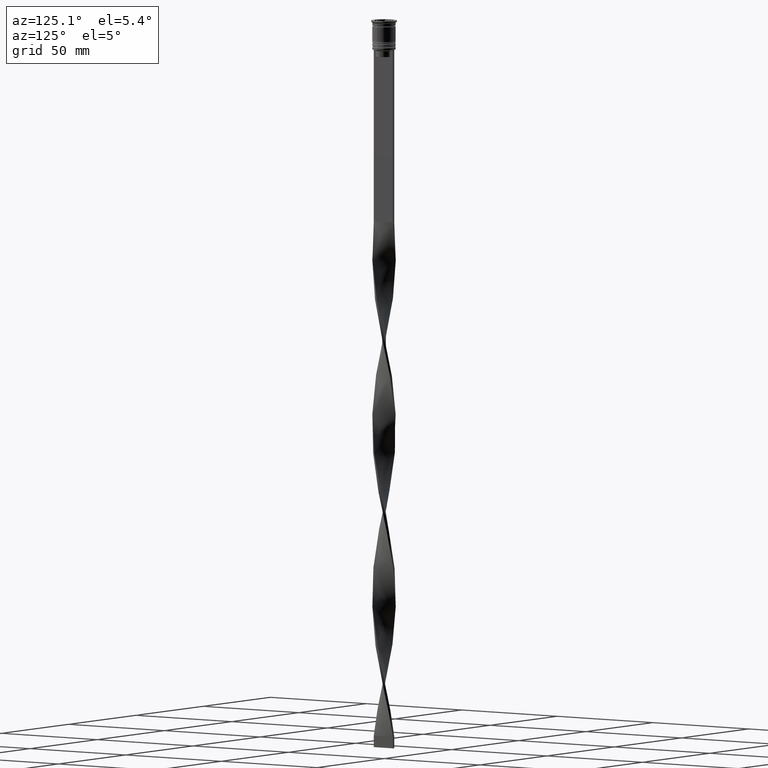
[diagram: clean part render]
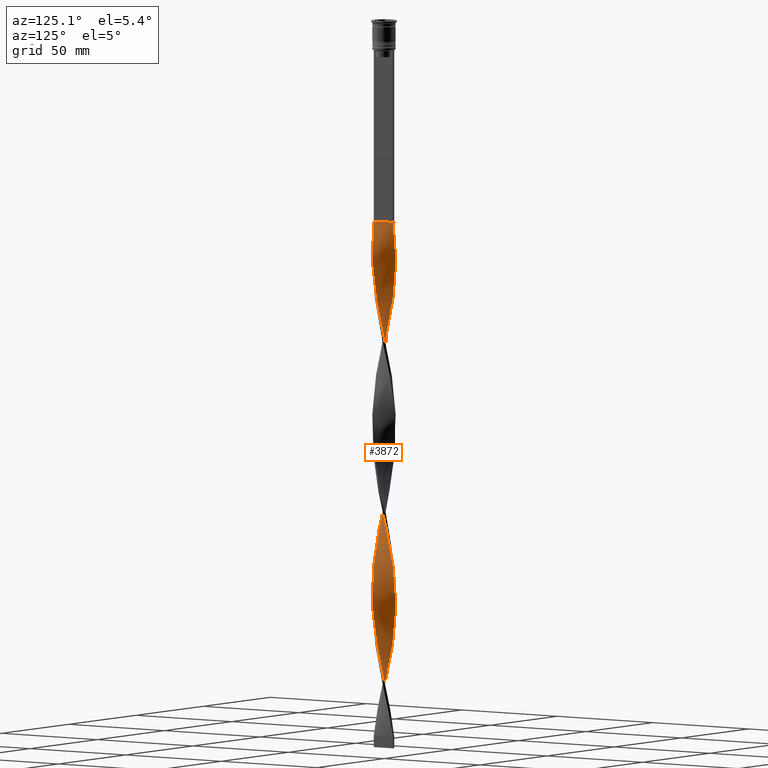
[diagram: same view with one face highlighted and labeled with its STEP entity id]
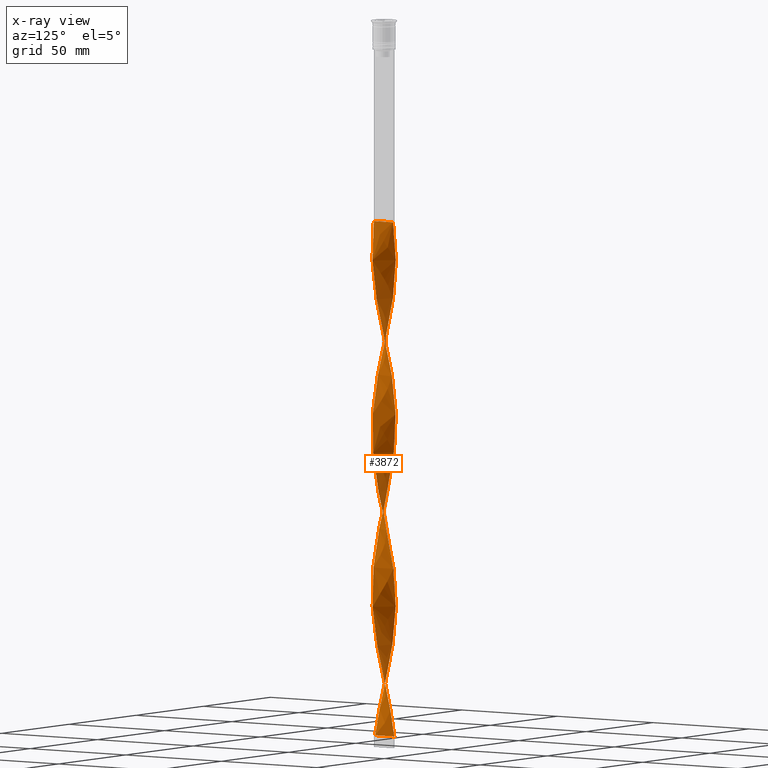
[diagram: x-ray of the same camera — body ghosted, the highlighted face saturated]
A machine part, auxiliary view. The second image highlights one B-rep face of the part: STEP entity #3872.
The next image is the same camera in x-ray: the body ghosted, the highlighted face saturated — about 0% of this face is hidden behind the body in this view.
In plain terms, the highlighted face is a freeform B-spline surface patch.
Its self-contained STEP definition (entity closure, byte-faithful):
#10 = CARTESIAN_POINT ( 'NONE',  ( -1.150588725173100402, 4.891435943105515882, -241.5877192982455881 ) ) ;
#15 = CARTESIAN_POINT ( 'NONE',  ( -3.651066433574120751, 3.477511282250446811, -107.8245614035087385 ) ) ;
#18 = CARTESIAN_POINT ( 'NONE',  ( 0.3297922997023089442, 5.014103812153978268, -156.2894736842105203 ) ) ;
#28 = CARTESIAN_POINT ( 'NONE',  ( 4.779714345601773218, 1.550590459937319476, -206.6929824561403564 ) ) ;
#33 = CARTESIAN_POINT ( 'NONE',  ( -4.459306470373857856, -2.316157551480869881, -136.9035087719298076 ) ) ;
#37 = CARTESIAN_POINT ( 'NONE',  ( -4.724258586126253157, -1.712127568673659006, -202.8157894736842195 ) ) ;
#59 = CARTESIAN_POINT ( 'NONE',  ( -4.969744073267052364, -0.7427273027343305190, -129.1491228070175339 ) ) ;
#63 = CARTESIAN_POINT ( 'NONE',  ( 4.724258586126252268, 1.712127568673660560, -129.1491228070175339 ) ) ;
#68 = CARTESIAN_POINT ( 'NONE',  ( 1.316153603105030268, -4.849509221873243625, -90.37719298245613686 ) ) ;
#71 = CARTESIAN_POINT ( 'NONE',  ( -3.465633818146537148, -3.638596190637134242, -291.9912280701753957 ) ) ;
#78 = CARTESIAN_POINT ( 'NONE',  ( -3.912358312251429826, 3.153324029743399315, -257.0964912280701924 ) ) ;
#88 = CARTESIAN_POINT ( 'NONE',  ( -3.465633818146535372, 3.638596190637134242, -175.6754385964912046 ) ) ;
#90 = ORIENTED_EDGE ( 'NONE', *, *, #306, .F. ) ;
#96 = CARTESIAN_POINT ( 'NONE',  ( -0.9143118122538356207, -4.958568818774617526, -305.5614035087719458 ) ) ;
#98 = CARTESIAN_POINT ( 'NONE',  ( 0.5000000000000000000, 5.000000000000000888, -86.50000000000000000 ) ) ;
#107 = CARTESIAN_POINT ( 'NONE',  ( 1.555904663195419424, 4.796095443128454150, -150.4736842105263008 ) ) ;
#113 = VERTEX_POINT ( 'NONE', #2081 ) ;
#121 = CARTESIAN_POINT ( 'NONE',  ( -2.096405966873735593, -4.566736473900832927, -299.7456140350877263 ) ) ;
#124 = CARTESIAN_POINT ( 'NONE',  ( 0.5000000000000000000, -4.999999999999999112, -86.50000000000000000 ) ) ;
#134 = CARTESIAN_POINT ( 'NONE',  ( 4.908199934305798706, -1.154532037420935353, -115.5789473684210265 ) ) ;
#137 = CARTESIAN_POINT ( 'NONE',  ( -4.459306470373857856, -2.316157551480869881, -284.2368421052631220 ) ) ;
#142 = CARTESIAN_POINT ( 'NONE',  ( 3.767136494507091538, 3.351425585076239777, -216.3859649122807127 ) ) ;
#150 = CARTESIAN_POINT ( 'NONE',  ( 1.940000089582123666, 4.635342452550982095, -148.5350877192982466 ) ) ;
#158 = CARTESIAN_POINT ( 'NONE',  ( -4.724258586126253157, 1.712127568673661671, -117.5175438596491233 ) ) ;
#160 = CARTESIAN_POINT ( 'NONE',  ( -2.819473840788613295, -4.159395059513908421, -295.8684210526315610 ) ) ;
#168 = CARTESIAN_POINT ( 'NONE',  ( 2.474816539791241166, -4.393023322829789024, -243.5263157894736707 ) ) ;
#177 = CARTESIAN_POINT ( 'NONE',  ( 0.08568818774616604461, 5.041431181225384250, -88.43859649122805422 ) ) ;
#180 = CARTESIAN_POINT ( 'NONE',  ( 5.031288212228302470, -0.3309225680477264619, -119.4561403508771917 ) ) ;
#191 = CARTESIAN_POINT ( 'NONE',  ( 3.912358312251428938, 3.153324029743397094, -284.2368421052631220 ) ) ;
#209 = CARTESIAN_POINT ( 'NONE',  ( 5.017136063310725369, 0.5017136063310723149, -270.6666666666666288 ) ) ;
#216 = CARTESIAN_POINT ( 'NONE',  ( 3.912358312251428938, 3.153324029743397094, -284.2368421052631220 ) ) ;
#229 = CARTESIAN_POINT ( 'NONE',  ( 2.096405966873734261, -4.566736473900831150, -241.5877192982455881 ) ) ;
#250 = CARTESIAN_POINT ( 'NONE',  ( -4.866129521283639292, -1.320664341398917419, -200.8771929824561369 ) ) ;
#258 = CARTESIAN_POINT ( 'NONE',  ( 4.173650190928738901, 2.829136777236349598, -282.2982456140351246 ) ) ;
#260 = CARTESIAN_POINT ( 'NONE',  ( 1.316153603105034264, 4.849509221873244513, -229.9561403508772059 ) ) ;
#279 = CARTESIAN_POINT ( 'NONE',  ( 3.339978767552787886, 3.754269813465269223, -288.1140350877192873 ) ) ;
#281 = CARTESIAN_POINT ( 'NONE',  ( -1.316153603105031378, -4.849509221873245401, -156.2894736842105203 ) ) ;
#303 = CARTESIAN_POINT ( 'NONE',  ( 2.324095515968828352, -4.474589461973509152, -173.7368421052631220 ) ) ;
#306 = EDGE_CURVE ( 'NONE', #1032, #113, #2606, .T. ) ;
#309 = CARTESIAN_POINT ( 'NONE',  ( -5.024212137769516140, 0.08539551914167348157, -125.2719298245613970 ) ) ;
#314 = CARTESIAN_POINT ( 'NONE',  ( -4.969744073267050588, 0.7427273027343300749, -191.1842105263157805 ) ) ;
#317 = CARTESIAN_POINT ( 'NONE',  ( -0.5000000000000006661, -5.000000000000000888, -307.5000000000000000 ) ) ;
#328 = CARTESIAN_POINT ( 'NONE',  ( -2.096405966873735593, -4.566736473900832927, -152.4122807017543835 ) ) ;
#335 = CARTESIAN_POINT ( 'NONE',  ( 0.5000000000000000000, 5.000000000000000888, -86.50000000000000000 ) ) ;
#338 = CARTESIAN_POINT ( 'NONE',  ( -4.908199934305798706, 1.154532037420935797, -189.2456140350877263 ) ) ;
#348 = CARTESIAN_POINT ( 'NONE',  ( 4.866129521283640180, -1.320664341398923414, -193.1228070175438347 ) ) ;
#353 = CARTESIAN_POINT ( 'NONE',  ( -2.676493308750143019, 4.252808903326802614, -102.0087719298245474 ) ) ;
#355 = CARTESIAN_POINT ( 'NONE',  ( -0.3297922997023116642, -5.014103812153977380, -229.9561403508772059 ) ) ;
#367 = CARTESIAN_POINT ( 'NONE',  ( -2.474816539791244274, -4.393023322829789912, -297.8070175438595584 ) ) ;
#372 = CARTESIAN_POINT ( 'NONE',  ( -0.08568818774616768219, -5.041431181225384250, -162.1052631578947683 ) ) ;
#375 = CARTESIAN_POINT ( 'NONE',  ( 3.465633818146535372, -3.638596190637133354, -249.3421052631578902 ) ) ;
#385 = CARTESIAN_POINT ( 'NONE',  ( 5.017136063310725369, 0.5017136063310723149, -123.3333333333333286 ) ) ;
#396 = CARTESIAN_POINT ( 'NONE',  ( -1.717995393956229355, -4.740449624971875053, -154.3508771929824661 ) ) ;
#400 = CARTESIAN_POINT ( 'NONE',  ( -0.9143118122538320680, 4.958568818774616638, -162.1052631578947683 ) ) ;
#405 = CARTESIAN_POINT ( 'NONE',  ( -4.651228756897742400, 1.946648882453704488, -185.3684210526315610 ) ) ;
#416 = CARTESIAN_POINT ( 'NONE',  ( -4.724258586126253157, 1.712127568673661671, -264.8508771929824661 ) ) ;
#423 = CARTESIAN_POINT ( 'NONE',  ( 4.866129521283639292, 1.320664341398920083, -127.2105263157894370 ) ) ;
#433 = CARTESIAN_POINT ( 'NONE',  ( -4.378018920948803405, 2.466363786592376872, -260.9736842105263577 ) ) ;
#437 = CARTESIAN_POINT ( 'NONE',  ( -0.4999999999999993339, 4.999999999999999112, -307.5000000000000000 ) ) ;
#444 = CARTESIAN_POINT ( 'NONE',  ( 1.150588725173100624, 4.891435943105514106, -152.4122807017543835 ) ) ;
#455 = CARTESIAN_POINT ( 'NONE',  ( 1.717995393956227579, 4.740449624971875053, -228.0175438596490949 ) ) ;
#465 = CARTESIAN_POINT ( 'NONE',  ( 4.582387650968865245, 2.103590795948400594, -131.0877192982456165 ) ) ;
#472 = CARTESIAN_POINT ( 'NONE',  ( -2.676493308750143019, 4.252808903326802614, -102.0087719298245474 ) ) ;
#474 = CARTESIAN_POINT ( 'NONE',  ( 1.717995393956226691, -4.740449624971873277, -92.31578947368419108 ) ) ;
#481 = CARTESIAN_POINT ( 'NONE',  ( 1.940000089582123666, 4.635342452550982095, -295.8684210526315610 ) ) ;
#490 = CARTESIAN_POINT ( 'NONE',  ( -0.7452727871507828228, 4.986776443082574062, -239.6491228070175055 ) ) ;
#499 = CARTESIAN_POINT ( 'NONE',  ( -5.024212137769514364, -0.08539551914167126112, -195.0614035087719458 ) ) ;
#508 = CARTESIAN_POINT ( 'NONE',  ( -4.866129521283640180, 1.320664341398920971, -119.4561403508771917 ) ) ;
#510 = CARTESIAN_POINT ( 'NONE',  ( 4.459306470373856079, -2.316157551480869881, -109.7631578947368354 ) ) ;
#522 = CARTESIAN_POINT ( 'NONE',  ( -0.7452727871507827118, -4.986776443082572285, -228.0175438596490949 ) ) ;
#527 = CARTESIAN_POINT ( 'NONE',  ( 4.866129521283639292, 1.320664341398920083, -274.5438596491227941 ) ) ;
#538 = CARTESIAN_POINT ( 'NONE',  ( -0.4999999999999993339, 4.999999999999999112, -307.5000000000000000 ) ) ;
#539 = CARTESIAN_POINT ( 'NONE',  ( -0.4999999999999993339, 4.999999999999999112, -307.5000000000000000 ) ) ;
#545 = CARTESIAN_POINT ( 'NONE',  ( 2.324095515968828796, 4.474589461973508264, -293.9298245614035068 ) ) ;
#558 = CARTESIAN_POINT ( 'NONE',  ( -4.378018920948801629, -2.466363786592375984, -206.6929824561403564 ) ) ;
#567 = CARTESIAN_POINT ( 'NONE',  ( 3.651066433574119863, -3.477511282250448144, -181.4912280701754241 ) ) ;
#598 = CARTESIAN_POINT ( 'NONE',  ( 5.017136063310726257, -0.5017136063310736471, -197.0000000000000000 ) ) ;
#620 = CARTESIAN_POINT ( 'NONE',  ( 1.717995393956227579, 4.740449624971874165, -228.0175438596490949 ) ) ;
#625 = CARTESIAN_POINT ( 'NONE',  ( 0.3297922997023078895, -5.014103812153980044, -164.0438596491227941 ) ) ;
#628 = CARTESIAN_POINT ( 'NONE',  ( -2.819473840788611518, 4.159395059513907533, -171.7982456140350962 ) ) ;
#637 = CARTESIAN_POINT ( 'NONE',  ( 0.08568818774616604461, 5.041431181225384250, -235.7719298245613970 ) ) ;
#643 = CARTESIAN_POINT ( 'NONE',  ( 5.031288212228305134, 0.3309225680477231313, -200.8771929824561084 ) ) ;
#647 = CARTESIAN_POINT ( 'NONE',  ( 0.7452727871507843771, 4.986776443082572285, -154.3508771929824661 ) ) ;
#660 = CARTESIAN_POINT ( 'NONE',  ( 1.555904663195416759, -4.796095443128456814, -169.8596491228070136 ) ) ;
#664 = EDGE_CURVE ( 'NONE', #113, #2522, #3884, .T. ) ;
#667 = CARTESIAN_POINT ( 'NONE',  ( -1.316153603105031378, -4.849509221873245401, -156.2894736842105203 ) ) ;
#670 = CARTESIAN_POINT ( 'NONE',  ( -3.767136494507087541, 3.351425585076241997, -177.6140350877192873 ) ) ;
#684 = CARTESIAN_POINT ( 'NONE',  ( -2.096405966873735593, -4.566736473900832927, -152.4122807017543835 ) ) ;
#688 = CARTESIAN_POINT ( 'NONE',  ( 2.096405966873734261, -4.566736473900831150, -241.5877192982455881 ) ) ;
#698 = CARTESIAN_POINT ( 'NONE',  ( -1.717995393956229355, -4.740449624971874165, -301.6842105263157805 ) ) ;
#705 = CARTESIAN_POINT ( 'NONE',  ( 3.651066433574119863, -3.477511282250448144, -181.4912280701754241 ) ) ;
#710 = CARTESIAN_POINT ( 'NONE',  ( 2.324095515968828796, 4.474589461973508264, -146.5964912280701355 ) ) ;
#720 = CARTESIAN_POINT ( 'NONE',  ( 3.767136494507087541, -3.351425585076240221, -103.9473684210526159 ) ) ;
#732 = CARTESIAN_POINT ( 'NONE',  ( -2.324095515968829684, 4.474589461973509152, -247.4035087719297792 ) ) ;
#741 = CARTESIAN_POINT ( 'NONE',  ( 4.941632792297182775, 0.9111889738649961989, -125.2719298245613970 ) ) ;
#750 = CARTESIAN_POINT ( 'NONE',  ( -5.031288212228305134, -0.3309225680477259623, -274.5438596491227941 ) ) ;
#757 = CARTESIAN_POINT ( 'NONE',  ( 4.017260339178528206, -3.018545902792139302, -105.8859649122806985 ) ) ;
#766 = CARTESIAN_POINT ( 'NONE',  ( 0.5000000000000000000, -4.999999999999999112, -86.50000000000000000 ) ) ;
#776 = CARTESIAN_POINT ( 'NONE',  ( 1.717995393956226691, -4.740449624971872389, -92.31578947368420529 ) ) ;
#790 = CARTESIAN_POINT ( 'NONE',  ( -2.474816539791244274, -4.393023322829789912, -297.8070175438595584 ) ) ;
#801 = CARTESIAN_POINT ( 'NONE',  ( 3.164131141785981871, -3.925766796198026487, -100.0701754385964932 ) ) ;
#808 = CARTESIAN_POINT ( 'NONE',  ( -4.582387650968867021, 2.103590795948401482, -115.5789473684210265 ) ) ;
#810 = CARTESIAN_POINT ( 'NONE',  ( 2.096405966873736482, 4.566736473900832927, -226.0789473684210407 ) ) ;
#819 = CARTESIAN_POINT ( 'NONE',  ( -3.912358312251429826, -3.153324029743396650, -210.5701754385964932 ) ) ;
#827 = CARTESIAN_POINT ( 'NONE',  ( 4.941632792297182775, 0.9111889738649961989, -125.2719298245613970 ) ) ;
#835 = CARTESIAN_POINT ( 'NONE',  ( 4.459306470373856079, -2.316157551480869881, -257.0964912280701924 ) ) ;
#844 = CARTESIAN_POINT ( 'NONE',  ( 5.024212137769514364, 0.08539551914167299584, -268.7280701754385746 ) ) ;
#845 = CARTESIAN_POINT ( 'NONE',  ( -3.028891101531455909, 4.031028344680096076, -103.9473684210526159 ) ) ;
#858 = CARTESIAN_POINT ( 'NONE',  ( -2.676493308750143019, -4.252808903326800838, -218.3245614035087954 ) ) ;
#867 = CARTESIAN_POINT ( 'NONE',  ( -4.459306470373857856, -2.316157551480869881, -136.9035087719298076 ) ) ;
#871 =( BOUNDED_CURVE ( )  B_SPLINE_CURVE ( 2, ( #2680, #2065, #68, #776, #1679, #2003, #1738, #801, #2047, #720, #757, #1431, #2334, #2023, #1078, #134, #3593, #3299, #2975, #385, #741, #423, #2315, #465, #1034, #3015, #2635, #1094, #2291, #2374, #3328, #2351, #150, #107, #444, #2938, #3280, #1720, #1698, #1390, #2661, #2999, #3924, #2696, #1659, #3626, #88, #1986, #3879, #3569, #3266, #405, #2957, #3899, #1814, #1772, #499, #1831, #3745, #250, #2102, #3034, #558, #2427, #819, #2409, #2139, #3384, #858, #1754, #3088, #2737, #3670, #522, #2451, #3054, #3999, #3708, #3071, #1530, #229, #168, #2796, #3726, #2122, #1151, #3417, #4040, #835, #1489, #1795, #1452, #2394, #3106, #3346, #209, #3686, #1505, #898, #2717, #877, #4062, #191, #3362, #2754, #1216, #2471, #4015, #481, #1193, #3981, #1168, #3401, #2082, #539 ),
 .UNSPECIFIED., .F., .T. ) 
 B_SPLINE_CURVE_WITH_KNOTS ( ( 3, 2, 2, 2, 2, 2, 2, 2, 2, 2, 2, 2, 2, 2, 2, 2, 2, 2, 2, 2, 2, 2, 2, 2, 2, 2, 2, 2, 2, 2, 2, 2, 2, 2, 2, 2, 2, 2, 2, 2, 2, 2, 2, 2, 2, 2, 2, 2, 2, 2, 2, 2, 2, 2, 2, 2, 2, 3 ),
 ( 0.000000000000000000, 0.01315789473684210453, 0.02631578947368420907, 0.03947368421052631360, 0.05263157894736841813, 0.06578947368421052266, 0.07894736842105262720, 0.09210526315789473173, 0.1052631578947368363, 0.1184210526315789408, 0.1315789473684210453, 0.1447368421052631637, 0.1578947368421052544, 0.1710526315789473728, 0.1842105263157894635, 0.1973684210526315541, 0.2105263157894736725, 0.2236842105263157909, 0.2368421052631578816, 0.2500000000000000000, 0.2631578947368420907, 0.2763157894736842368, 0.2894736842105263275, 0.3026315789473684181, 0.3157894736842105088, 0.3289473684210526550, 0.3421052631578947456, 0.3552631578947368918, 0.3684210526315789269, 0.3815789473684210731, 0.3947368421052631082, 0.4078947368421052544, 0.4210526315789473450, 0.4342105263157895467, 0.4473684210526315819, 0.4605263157894736725, 0.4736842105263157632, 0.4868421052631579093, 0.5000000000000000000, 0.5131578947368421462, 0.5263157894736841813, 0.5394736842105263275, 0.5526315789473684736, 0.5657894736842105088, 0.5789473684210526550, 0.5921052631578946901, 0.6052631578947368363, 0.6184210526315789824, 0.6315789473684210176, 0.6447368421052631637, 0.6578947368421053099, 0.6710526315789473450, 0.6842105263157894912, 0.6973684210526315264, 0.7105263157894737835, 0.7236842105263158187, 0.7368421052631578538, 0.7500000000000000000 ),
 .UNSPECIFIED. ) 
 CURVE ( )  GEOMETRIC_REPRESENTATION_ITEM ( )  RATIONAL_B_SPLINE_CURVE ( ( 1.000000000000000000, 0.9965844930066698470, 1.000000000000000000, 0.9965844930066698470, 1.000000000000000000, 0.9965844930066698470, 1.000000000000000000, 0.9965844930066698470, 1.000000000000000000, 0.9965844930066698470, 1.000000000000000000, 0.9965844930066698470, 1.000000000000000000, 0.9965844930066698470, 1.000000000000000000, 0.9965844930066698470, 1.000000000000000000, 0.9965844930066698470, 1.000000000000000000, 0.9965844930066698470, 1.000000000000000000, 0.9965844930066698470, 1.000000000000000000, 0.9965844930066698470, 1.000000000000000000, 0.9965844930066698470, 1.000000000000000000, 0.9965844930066698470, 1.000000000000000000, 0.9965844930066698470, 1.000000000000000000, 0.9965844930066698470, 1.000000000000000000, 0.9965844930066698470, 1.000000000000000000, 0.9965844930066698470, 1.000000000000000000, 0.9965844930066698470, 1.000000000000000000, 0.9965844930066698470, 1.000000000000000000, 0.9965844930066698470, 1.000000000000000000, 0.9965844930066698470, 1.000000000000000000, 0.9965844930066698470, 1.000000000000000000, 0.9965844930066698470, 1.000000000000000000, 0.9965844930066698470, 1.000000000000000000, 0.9965844930066698470, 1.000000000000000000, 0.9965844930066698470, 1.000000000000000000, 0.9965844930066698470, 1.000000000000000000, 0.9965844930066698470, 1.000000000000000000, 0.9965844930066698470, 1.000000000000000000, 0.9965844930066698470, 1.000000000000000000, 0.9965844930066698470, 1.000000000000000000, 0.9965844930066698470, 1.000000000000000000, 0.9965844930066698470, 1.000000000000000000, 0.9965844930066698470, 1.000000000000000000, 0.9965844930066698470, 1.000000000000000000, 0.9965844930066698470, 1.000000000000000000, 0.9965844930066698470, 1.000000000000000000, 0.9965844930066698470, 1.000000000000000000, 0.9965844930066698470, 1.000000000000000000, 0.9965844930066698470, 1.000000000000000000, 0.9965844930066698470, 1.000000000000000000, 0.9965844930066698470, 1.000000000000000000, 0.9965844930066698470, 1.000000000000000000, 0.9965844930066698470, 1.000000000000000000, 0.9965844930066698470, 1.000000000000000000, 0.9965844930066698470, 1.000000000000000000, 0.9965844930066698470, 1.000000000000000000, 0.9965844930066698470, 1.000000000000000000, 0.9965844930066698470, 1.000000000000000000, 0.9965844930066698470, 1.000000000000000000, 0.9965844930066698470, 1.000000000000000000, 0.9965844930066698470, 1.000000000000000000, 0.9965844930066698470, 1.000000000000000000, 0.9965844930066698470, 1.000000000000000000, 0.9965844930066698470, 1.000000000000000000, 0.9965844930066698470, 1.000000000000000000 ) ) 
 REPRESENTATION_ITEM ( '' )  );
#877 = CARTESIAN_POINT ( 'NONE',  ( 4.378018920948802517, 2.466363786592374652, -280.3596491228070136 ) ) ;
#898 = CARTESIAN_POINT ( 'NONE',  ( 4.724258586126252268, 1.712127568673660560, -276.4824561403509051 ) ) ;
#905 = CARTESIAN_POINT ( 'NONE',  ( -0.9143118122538357317, -4.958568818774617526, -158.2280701754386030 ) ) ;
#928 = CARTESIAN_POINT ( 'NONE',  ( 4.378018920948802517, 2.466363786592374652, -280.3596491228070136 ) ) ;
#930 = CARTESIAN_POINT ( 'NONE',  ( 4.908199934305800483, 1.154532037420934687, -204.7543859649123021 ) ) ;
#936 = CARTESIAN_POINT ( 'NONE',  ( 4.866129521283640180, -1.320664341398923414, -193.1228070175438063 ) ) ;
#942 = CARTESIAN_POINT ( 'NONE',  ( -0.4999999999999993339, 4.999999999999999112, -160.1666666666666856 ) ) ;
#943 = ORIENTED_EDGE ( 'NONE', *, *, #2685, .F. ) ;
#955 = CARTESIAN_POINT ( 'NONE',  ( 4.267384183849968871, 2.685666220508037938, -212.5087719298246043 ) ) ;
#960 = CARTESIAN_POINT ( 'NONE',  ( 4.173650190928738901, -2.829136777236352707, -185.3684210526315894 ) ) ;
#963 = CARTESIAN_POINT ( 'NONE',  ( -3.339978767552790107, -3.754269813465268335, -214.4473684210526301 ) ) ;
#972 = CARTESIAN_POINT ( 'NONE',  ( -4.582387650968867021, 2.103590795948401482, -262.9122807017543551 ) ) ;
#980 = CARTESIAN_POINT ( 'NONE',  ( -4.651228756897745953, -1.946648882453702711, -134.9649122807017534 ) ) ;
#984 = CARTESIAN_POINT ( 'NONE',  ( -4.941632792297182775, -0.9111889738649967541, -198.9385964912280826 ) ) ;
#997 = CARTESIAN_POINT ( 'NONE',  ( -0.7452727871507827118, 4.986776443082574062, -239.6491228070175339 ) ) ;
#1004 = CARTESIAN_POINT ( 'NONE',  ( -1.940000089582123666, 4.635342452550982983, -98.13157894736841058 ) ) ;
#1008 = CARTESIAN_POINT ( 'NONE',  ( 1.717995393956226691, -4.740449624971873277, -239.6491228070175055 ) ) ;
#1017 = CARTESIAN_POINT ( 'NONE',  ( -3.767136494507089317, -3.351425585076241553, -290.0526315789473415 ) ) ;
#1025 = CARTESIAN_POINT ( 'NONE',  ( 3.028891101531455465, -4.031028344680097852, -177.6140350877192873 ) ) ;
#1029 = CARTESIAN_POINT ( 'NONE',  ( 3.912358312251428938, 3.153324029743397094, -136.9035087719298076 ) ) ;
#1032 = VERTEX_POINT ( 'NONE', #98 ) ;
#1034 = CARTESIAN_POINT ( 'NONE',  ( 4.378018920948802517, 2.466363786592374652, -133.0263157894736992 ) ) ;
#1042 = CARTESIAN_POINT ( 'NONE',  ( -4.267384183849969759, -2.685666220508038382, -286.1754385964911762 ) ) ;
#1067 = CARTESIAN_POINT ( 'NONE',  ( 4.459306470373858744, 2.316157551480868992, -210.5701754385964932 ) ) ;
#1078 = CARTESIAN_POINT ( 'NONE',  ( 4.779714345601771441, -1.550590459937318588, -113.6403508771929864 ) ) ;
#1086 = CARTESIAN_POINT ( 'NONE',  ( -5.017136063310728034, 0.5017136063310729810, -270.6666666666665719 ) ) ;
#1094 = CARTESIAN_POINT ( 'NONE',  ( 3.651066433574118975, 3.477511282250445923, -138.8421052631578902 ) ) ;
#1104 = CARTESIAN_POINT ( 'NONE',  ( 4.779714345601773218, 1.550590459937319476, -206.6929824561403564 ) ) ;
#1126 = CARTESIAN_POINT ( 'NONE',  ( -1.150588725173100402, 4.891435943105515882, -241.5877192982455881 ) ) ;
#1141 = CARTESIAN_POINT ( 'NONE',  ( 4.267384183849967982, -2.685666220508037494, -107.8245614035087385 ) ) ;
#1151 = CARTESIAN_POINT ( 'NONE',  ( 3.767136494507087541, -3.351425585076240221, -251.2807017543860013 ) ) ;
#1157 = CARTESIAN_POINT ( 'NONE',  ( 4.969744073267051476, -0.7427273027343307410, -264.8508771929824661 ) ) ;
#1168 = CARTESIAN_POINT ( 'NONE',  ( 0.7452727871507842661, 4.986776443082572285, -301.6842105263157805 ) ) ;
#1193 = CARTESIAN_POINT ( 'NONE',  ( 1.555904663195419424, 4.796095443128454150, -297.8070175438595584 ) ) ;
#1216 = CARTESIAN_POINT ( 'NONE',  ( 3.028891101531455021, 4.031028344680095188, -290.0526315789473415 ) ) ;
#1224 = CARTESIAN_POINT ( 'NONE',  ( 3.339978767552786110, -3.754269813465273664, -179.5526315789473415 ) ) ;
#1229 = CARTESIAN_POINT ( 'NONE',  ( 0.5000000000000000000, -4.999999999999999112, -86.50000000000000000 ) ) ;
#1240 = CARTESIAN_POINT ( 'NONE',  ( 4.941632792297182775, 0.9111889738649961989, -272.6052631578947398 ) ) ;
#1243 = CARTESIAN_POINT ( 'NONE',  ( -3.465633818146537148, -3.638596190637134242, -144.6578947368421098 ) ) ;
#1250 = CARTESIAN_POINT ( 'NONE',  ( 4.378018920948802517, -2.466363786592378204, -187.3070175438596436 ) ) ;
#1255 = CARTESIAN_POINT ( 'NONE',  ( -3.028891101531457242, -4.031028344680093412, -216.3859649122807127 ) ) ;
#1266 = CARTESIAN_POINT ( 'NONE',  ( -1.717995393956229355, -4.740449624971874165, -154.3508771929824661 ) ) ;
#1271 = CARTESIAN_POINT ( 'NONE',  ( 1.940000089582123222, -4.635342452550982983, -171.7982456140350962 ) ) ;
#1273 = CARTESIAN_POINT ( 'NONE',  ( -1.316153603105029823, 4.849509221873243625, -164.0438596491227941 ) ) ;
#1285 = CARTESIAN_POINT ( 'NONE',  ( -4.378018920948803405, 2.466363786592376872, -260.9736842105263577 ) ) ;
#1291 = CARTESIAN_POINT ( 'NONE',  ( -4.173650190928740678, 2.829136777236350930, -111.7017543859649038 ) ) ;
#1294 = CARTESIAN_POINT ( 'NONE',  ( -3.465633818146535372, 3.638596190637134242, -175.6754385964912046 ) ) ;
#1306 = CARTESIAN_POINT ( 'NONE',  ( 4.459306470373858744, 2.316157551480868992, -210.5701754385964932 ) ) ;
#1311 = CARTESIAN_POINT ( 'NONE',  ( -3.767136494507089317, -3.351425585076241997, -142.7192982456140271 ) ) ;
#1317 = CARTESIAN_POINT ( 'NONE',  ( -2.676493308750143019, -4.252808903326800838, -218.3245614035087954 ) ) ;
#1340 = CARTESIAN_POINT ( 'NONE',  ( -4.582387650968867021, 2.103590795948401482, -115.5789473684210265 ) ) ;
#1343 = CARTESIAN_POINT ( 'NONE',  ( -1.717995393956225580, 4.740449624971874165, -165.9824561403508199 ) ) ;
#1350 = CARTESIAN_POINT ( 'NONE',  ( -2.819473840788613295, -4.159395059513908421, -295.8684210526315610 ) ) ;
#1357 = CARTESIAN_POINT ( 'NONE',  ( -4.866129521283640180, 1.320664341398920971, -266.7894736842105203 ) ) ;
#1374 = CARTESIAN_POINT ( 'NONE',  ( 0.08568818774616604461, 5.041431181225384250, -235.7719298245614254 ) ) ;
#1390 = CARTESIAN_POINT ( 'NONE',  ( -0.9143118122538321790, 4.958568818774615750, -162.1052631578947398 ) ) ;
#1401 = CARTESIAN_POINT ( 'NONE',  ( -1.316153603105031378, -4.849509221873245401, -303.6228070175438347 ) ) ;
#1416 = CARTESIAN_POINT ( 'NONE',  ( -5.024212137769516140, 0.08539551914167348157, -272.6052631578947398 ) ) ;
#1423 = CARTESIAN_POINT ( 'NONE',  ( 0.9143118122538338444, -4.958568818774616638, -88.43859649122805422 ) ) ;
#1431 = CARTESIAN_POINT ( 'NONE',  ( 4.267384183849967094, -2.685666220508037494, -107.8245614035087527 ) ) ;
#1442 = CARTESIAN_POINT ( 'NONE',  ( 3.164131141785983203, 3.925766796198028263, -220.2631578947368212 ) ) ;
#1452 = CARTESIAN_POINT ( 'NONE',  ( 4.908199934305798706, -1.154532037420935353, -262.9122807017543551 ) ) ;
#1461 = CARTESIAN_POINT ( 'NONE',  ( 0.5000000000000000000, 5.000000000000000888, -86.50000000000000000 ) ) ;
#1464 = CARTESIAN_POINT ( 'NONE',  ( 5.024212137769514364, 0.08539551914167299584, -121.3947368421052460 ) ) ;
#1489 = CARTESIAN_POINT ( 'NONE',  ( 4.651228756897744177, -1.946648882453702267, -259.0350877192983035 ) ) ;
#1495 = CARTESIAN_POINT ( 'NONE',  ( 0.3297922997023089442, 5.014103812153978268, -303.6228070175438347 ) ) ;
#1500 = DIRECTION ( 'NONE',  ( 0.000000000000000000, 1.000000000000000000, 0.000000000000000000 ) ) ;
#1505 = CARTESIAN_POINT ( 'NONE',  ( 4.866129521283639292, 1.320664341398920083, -274.5438596491227941 ) ) ;
#1513 = CARTESIAN_POINT ( 'NONE',  ( 1.940000089582123666, 4.635342452550982095, -295.8684210526315610 ) ) ;
#1515 = CARTESIAN_POINT ( 'NONE',  ( -4.173650190928740678, 2.829136777236350930, -111.7017543859649038 ) ) ;
#1530 = CARTESIAN_POINT ( 'NONE',  ( 1.717995393956226691, -4.740449624971872389, -239.6491228070175339 ) ) ;
#1539 = CARTESIAN_POINT ( 'NONE',  ( -2.324095515968829240, 4.474589461973509152, -247.4035087719297792 ) ) ;
#1556 = CARTESIAN_POINT ( 'NONE',  ( 4.651228756897746841, 1.946648882453700047, -208.6315789473684106 ) ) ;
#1575 = CARTESIAN_POINT ( 'NONE',  ( 4.017260339178531758, 3.018545902792137081, -214.4473684210526301 ) ) ;
#1583 = CARTESIAN_POINT ( 'NONE',  ( 1.555904663195416537, -4.796095443128457703, -169.8596491228070136 ) ) ;
#1589 = CARTESIAN_POINT ( 'NONE',  ( 1.150588725173100624, 4.891435943105514106, -152.4122807017543835 ) ) ;
#1602 = CARTESIAN_POINT ( 'NONE',  ( -4.173650190928740678, 2.829136777236350930, -259.0350877192983035 ) ) ;
#1612 = CARTESIAN_POINT ( 'NONE',  ( 4.173650190928738901, 2.829136777236349598, -134.9649122807017534 ) ) ;
#1621 = CARTESIAN_POINT ( 'NONE',  ( 5.031288212228305134, 0.3309225680477231313, -200.8771929824561369 ) ) ;
#1626 = FACE_OUTER_BOUND ( 'NONE', #1745, .T. ) ;
#1629 = CARTESIAN_POINT ( 'NONE',  ( 0.08568818774616383804, -5.041431181225382474, -231.8947368421052886 ) ) ;
#1644 = CARTESIAN_POINT ( 'NONE',  ( 0.7452727871507814905, -4.986776443082574950, -165.9824561403508199 ) ) ;
#1651 = CARTESIAN_POINT ( 'NONE',  ( 3.164131141785981871, -3.925766796198026487, -247.4035087719297792 ) ) ;
#1659 = CARTESIAN_POINT ( 'NONE',  ( -2.819473840788611518, 4.159395059513907533, -171.7982456140350962 ) ) ;
#1669 = CARTESIAN_POINT ( 'NONE',  ( -3.339978767552788330, 3.754269813465271888, -105.8859649122806985 ) ) ;
#1679 = CARTESIAN_POINT ( 'NONE',  ( 2.096405966873734261, -4.566736473900831150, -94.25438596491227372 ) ) ;
#1689 = CARTESIAN_POINT ( 'NONE',  ( 4.267384183849969759, 2.685666220508037938, -212.5087719298245759 ) ) ;
#1698 = CARTESIAN_POINT ( 'NONE',  ( -0.4999999999999993339, 4.999999999999999112, -160.1666666666666856 ) ) ;
#1706 = CARTESIAN_POINT ( 'NONE',  ( -4.459306470373857856, -2.316157551480869881, -284.2368421052631220 ) ) ;
#1720 = CARTESIAN_POINT ( 'NONE',  ( -0.08568818774616442091, 5.041431181225382474, -158.2280701754386030 ) ) ;
#1723 = CARTESIAN_POINT ( 'NONE',  ( -0.9143118122538357317, -4.958568818774617526, -305.5614035087719458 ) ) ;
#1730 = CARTESIAN_POINT ( 'NONE',  ( -4.941632792297183663, 0.9111889738649969761, -268.7280701754385746 ) ) ;
#1738 = CARTESIAN_POINT ( 'NONE',  ( 2.819473840788611962, -4.159395059513907533, -98.13157894736841058 ) ) ;
#1744 = CARTESIAN_POINT ( 'NONE',  ( -4.941632792297183663, 0.9111889738649969761, -121.3947368421052460 ) ) ;
#1745 = EDGE_LOOP ( 'NONE', ( #943, #1808, #3402, #90 ) ) ;
#1747 = CARTESIAN_POINT ( 'NONE',  ( 3.164131141785981871, -3.925766796198026487, -100.0701754385964932 ) ) ;
#1754 = CARTESIAN_POINT ( 'NONE',  ( -2.324095515968828796, -4.474589461973507376, -220.2631578947368212 ) ) ;
#1763 = CARTESIAN_POINT ( 'NONE',  ( -3.651066433574120751, 3.477511282250446811, -255.1578947368421666 ) ) ;
#1772 = CARTESIAN_POINT ( 'NONE',  ( -5.031288212228302470, 0.3309225680477291820, -193.1228070175438347 ) ) ;
#1783 = CARTESIAN_POINT ( 'NONE',  ( -0.4999999999999993339, 4.999999999999999112, -307.5000000000000000 ) ) ;
#1795 = CARTESIAN_POINT ( 'NONE',  ( 4.779714345601771441, -1.550590459937318588, -260.9736842105263577 ) ) ;
#1802 = CARTESIAN_POINT ( 'NONE',  ( -0.7452727871507827118, 4.986776443082574062, -92.31578947368420529 ) ) ;
#1808 = ORIENTED_EDGE ( 'NONE', *, *, #2130, .T. ) ;
#1814 = CARTESIAN_POINT ( 'NONE',  ( -4.969744073267050588, 0.7427273027343300749, -191.1842105263157805 ) ) ;
#1831 = CARTESIAN_POINT ( 'NONE',  ( -5.017136063310725369, -0.5017136063310717597, -197.0000000000000000 ) ) ;
#1838 = CARTESIAN_POINT ( 'NONE',  ( 5.031288212228302470, -0.3309225680477264619, -266.7894736842105203 ) ) ;
#1840 = CARTESIAN_POINT ( 'NONE',  ( 1.940000089582123222, -4.635342452550982983, -171.7982456140350962 ) ) ;
#1866 = CARTESIAN_POINT ( 'NONE',  ( -2.474816539791244274, -4.393023322829789912, -150.4736842105263008 ) ) ;
#1885 = CARTESIAN_POINT ( 'NONE',  ( -0.3297922997023085001, 5.014103812153980044, -237.7105263157894797 ) ) ;
#1895 = CARTESIAN_POINT ( 'NONE',  ( -4.267384183849967094, 2.685666220508038826, -181.4912280701754241 ) ) ;
#1907 = CARTESIAN_POINT ( 'NONE',  ( -3.651066433574120751, 3.477511282250446811, -255.1578947368421382 ) ) ;
#1914 = CARTESIAN_POINT ( 'NONE',  ( -2.819473840788613295, -4.159395059513908421, -148.5350877192982466 ) ) ;
#1918 = CARTESIAN_POINT ( 'NONE',  ( -0.08568818774616443479, 5.041431181225382474, -158.2280701754386314 ) ) ;
#1929 = CARTESIAN_POINT ( 'NONE',  ( -2.819473840788613295, -4.159395059513908421, -148.5350877192982466 ) ) ;
#1934 = CARTESIAN_POINT ( 'NONE',  ( -1.555904663195417426, 4.796095443128457703, -96.19298245614034215 ) ) ;
#1937 = CARTESIAN_POINT ( 'NONE',  ( -1.555904663195420090, -4.796095443128455038, -224.1403508771929580 ) ) ;
#1952 = CARTESIAN_POINT ( 'NONE',  ( -0.9143118122538356207, -4.958568818774617526, -158.2280701754386314 ) ) ;
#1955 = CARTESIAN_POINT ( 'NONE',  ( 2.819473840788611962, -4.159395059513907533, -245.4649122807017534 ) ) ;
#1978 = CARTESIAN_POINT ( 'NONE',  ( -2.096405966873734261, 4.566736473900831150, -167.9210526315789309 ) ) ;
#1986 = CARTESIAN_POINT ( 'NONE',  ( -3.767136494507087541, 3.351425585076241553, -177.6140350877192873 ) ) ;
#1994 = CARTESIAN_POINT ( 'NONE',  ( -3.164131141785982759, -3.925766796198028263, -293.9298245614035068 ) ) ;
#2003 = CARTESIAN_POINT ( 'NONE',  ( 2.474816539791241166, -4.393023322829789024, -96.19298245614034215 ) ) ;
#2013 =( BOUNDED_SURFACE ( )  B_SPLINE_SURFACE ( 1, 2, ( 
 ( #335, #2861, #3475, #3209, #2902, #1934, #1004, #2881, #353, #3824, #1669, #15, #3847, #1291, #3192, #1340, #3167, #2608, #3496, #2262, #309, #3254, #59, #3539, #3868, #980, #33, #3784, #2555, #1311, #2241, #3521, #1914, #2583, #684, #396, #667, #1952, #3229, #372, #625, #1644, #4127, #1583, #1271, #2926, #2282, #1025, #3558, #705, #2949, #960, #1250, #3806, #2513, #936, #2534, #2203, #2221, #643, #2706, #2644, #1104, #2033, #1067, #1689, #3581, #142, #3275, #1442, #3660, #2966, #810, #455, #3354, #2690, #3912, #1374, #3968, #490, #1126, #2985, #3934, #732, #2343, #2385, #2324, #1763, #78, #3600, #433, #2073, #416, #1357, #1730, #1086, #3311, #750, #2626, #3291, #3888, #3637, #1706, #1042, #2669, #3007, #2301, #1994, #160, #790, #121, #3618, #1401, #96, #2016 ),
 ( #766, #1423, #3951, #474, #2360, #2057, #3338, #1747, #3026, #3371, #2092, #1141, #510, #3043, #2401, #3990, #3679, #180, #1464, #2729, #827, #3562, #63, #4133, #2866, #1612, #1029, #2932, #3828, #2286, #3543, #710, #3499, #2885, #1589, #647, #18, #1918, #942, #400, #1273, #1343, #1978, #2539, #628, #3524, #1294, #670, #3479, #1895, #4108, #3196, #3259, #338, #314, #2206, #2558, #2612, #984, #3171, #37, #2245, #3874, #2837, #3852, #3809, #963, #1255, #1317, #2224, #2518, #1937, #3787, #3213, #355, #1629, #2906, #2267, #2589, #1008, #688, #3236, #1955, #1651, #375, #2672, #2416, #3095, #2129, #3406, #2761, #3391, #1157, #1838, #844, #3139, #1240, #527, #2503, #2146, #928, #258, #216, #3077, #279, #2195, #2823, #545, #1513, #3694, #4048, #4092, #1495, #3467, #1783 ) ),
 .UNSPECIFIED., .F., .F., .F. ) 
 B_SPLINE_SURFACE_WITH_KNOTS ( ( 2, 2 ),
 ( 3, 2, 2, 2, 2, 2, 2, 2, 2, 2, 2, 2, 2, 2, 2, 2, 2, 2, 2, 2, 2, 2, 2, 2, 2, 2, 2, 2, 2, 2, 2, 2, 2, 2, 2, 2, 2, 2, 2, 2, 2, 2, 2, 2, 2, 2, 2, 2, 2, 2, 2, 2, 2, 2, 2, 2, 2, 3 ),
 ( 0.000000000000000000, 1.000000000000000000 ),
 ( 0.000000000000000000, 0.01315789473684210453, 0.02631578947368420907, 0.03947368421052631360, 0.05263157894736841813, 0.06578947368421052266, 0.07894736842105262720, 0.09210526315789473173, 0.1052631578947368363, 0.1184210526315789408, 0.1315789473684210453, 0.1447368421052631637, 0.1578947368421052544, 0.1710526315789473728, 0.1842105263157894635, 0.1973684210526315819, 0.2105263157894736725, 0.2236842105263157909, 0.2368421052631578816, 0.2500000000000000000, 0.2631578947368420907, 0.2763157894736842368, 0.2894736842105263275, 0.3026315789473684181, 0.3157894736842105088, 0.3289473684210526550, 0.3421052631578947456, 0.3552631578947368363, 0.3684210526315789269, 0.3815789473684210731, 0.3947368421052631637, 0.4078947368421052544, 0.4210526315789473450, 0.4342105263157894912, 0.4473684210526315819, 0.4605263157894736725, 0.4736842105263157632, 0.4868421052631579093, 0.5000000000000000000, 0.5131578947368421462, 0.5263157894736841813, 0.5394736842105263275, 0.5526315789473684736, 0.5657894736842105088, 0.5789473684210526550, 0.5921052631578946901, 0.6052631578947368363, 0.6184210526315789824, 0.6315789473684210176, 0.6447368421052631637, 0.6578947368421053099, 0.6710526315789473450, 0.6842105263157894912, 0.6973684210526315264, 0.7105263157894736725, 0.7236842105263158187, 0.7368421052631578538, 0.7500000000000000000 ),
 .UNSPECIFIED. ) 
 GEOMETRIC_REPRESENTATION_ITEM ( )  RATIONAL_B_SPLINE_SURFACE ( (
 ( 1.000000000000000000, 0.9965844930066698470, 1.000000000000000000, 0.9965844930066698470, 1.000000000000000000, 0.9965844930066698470, 1.000000000000000000, 0.9965844930066698470, 1.000000000000000000, 0.9965844930066698470, 1.000000000000000000, 0.9965844930066698470, 1.000000000000000000, 0.9965844930066698470, 1.000000000000000000, 0.9965844930066698470, 1.000000000000000000, 0.9965844930066698470, 1.000000000000000000, 0.9965844930066698470, 1.000000000000000000, 0.9965844930066698470, 1.000000000000000000, 0.9965844930066698470, 1.000000000000000000, 0.9965844930066698470, 1.000000000000000000, 0.9965844930066698470, 1.000000000000000000, 0.9965844930066698470, 1.000000000000000000, 0.9965844930066698470, 1.000000000000000000, 0.9965844930066698470, 1.000000000000000000, 0.9965844930066698470, 1.000000000000000000, 0.9965844930066698470, 1.000000000000000000, 0.9965844930066698470, 1.000000000000000000, 0.9965844930066698470, 1.000000000000000000, 0.9965844930066698470, 1.000000000000000000, 0.9965844930066698470, 1.000000000000000000, 0.9965844930066698470, 1.000000000000000000, 0.9965844930066698470, 1.000000000000000000, 0.9965844930066698470, 1.000000000000000000, 0.9965844930066698470, 1.000000000000000000, 0.9965844930066698470, 1.000000000000000000, 0.9965844930066698470, 1.000000000000000000, 0.9965844930066698470, 1.000000000000000000, 0.9965844930066698470, 1.000000000000000000, 0.9965844930066698470, 1.000000000000000000, 0.9965844930066698470, 1.000000000000000000, 0.9965844930066698470, 1.000000000000000000, 0.9965844930066698470, 1.000000000000000000, 0.9965844930066698470, 1.000000000000000000, 0.9965844930066698470, 1.000000000000000000, 0.9965844930066698470, 1.000000000000000000, 0.9965844930066698470, 1.000000000000000000, 0.9965844930066698470, 1.000000000000000000, 0.9965844930066698470, 1.000000000000000000, 0.9965844930066698470, 1.000000000000000000, 0.9965844930066698470, 1.000000000000000000, 0.9965844930066698470, 1.000000000000000000, 0.9965844930066698470, 1.000000000000000000, 0.9965844930066698470, 1.000000000000000000, 0.9965844930066698470, 1.000000000000000000, 0.9965844930066698470, 1.000000000000000000, 0.9965844930066698470, 1.000000000000000000, 0.9965844930066698470, 1.000000000000000000, 0.9965844930066698470, 1.000000000000000000, 0.9965844930066698470, 1.000000000000000000, 0.9965844930066698470, 1.000000000000000000, 0.9965844930066698470, 1.000000000000000000, 0.9965844930066698470, 1.000000000000000000, 0.9965844930066698470, 1.000000000000000000, 0.9965844930066698470, 1.000000000000000000),
 ( 1.000000000000000000, 0.9965844930066698470, 1.000000000000000000, 0.9965844930066698470, 1.000000000000000000, 0.9965844930066698470, 1.000000000000000000, 0.9965844930066698470, 1.000000000000000000, 0.9965844930066698470, 1.000000000000000000, 0.9965844930066698470, 1.000000000000000000, 0.9965844930066698470, 1.000000000000000000, 0.9965844930066698470, 1.000000000000000000, 0.9965844930066698470, 1.000000000000000000, 0.9965844930066698470, 1.000000000000000000, 0.9965844930066698470, 1.000000000000000000, 0.9965844930066698470, 1.000000000000000000, 0.9965844930066698470, 1.000000000000000000, 0.9965844930066698470, 1.000000000000000000, 0.9965844930066698470, 1.000000000000000000, 0.9965844930066698470, 1.000000000000000000, 0.9965844930066698470, 1.000000000000000000, 0.9965844930066698470, 1.000000000000000000, 0.9965844930066698470, 1.000000000000000000, 0.9965844930066698470, 1.000000000000000000, 0.9965844930066698470, 1.000000000000000000, 0.9965844930066698470, 1.000000000000000000, 0.9965844930066698470, 1.000000000000000000, 0.9965844930066698470, 1.000000000000000000, 0.9965844930066698470, 1.000000000000000000, 0.9965844930066698470, 1.000000000000000000, 0.9965844930066698470, 1.000000000000000000, 0.9965844930066698470, 1.000000000000000000, 0.9965844930066698470, 1.000000000000000000, 0.9965844930066698470, 1.000000000000000000, 0.9965844930066698470, 1.000000000000000000, 0.9965844930066698470, 1.000000000000000000, 0.9965844930066698470, 1.000000000000000000, 0.9965844930066698470, 1.000000000000000000, 0.9965844930066698470, 1.000000000000000000, 0.9965844930066698470, 1.000000000000000000, 0.9965844930066698470, 1.000000000000000000, 0.9965844930066698470, 1.000000000000000000, 0.9965844930066698470, 1.000000000000000000, 0.9965844930066698470, 1.000000000000000000, 0.9965844930066698470, 1.000000000000000000, 0.9965844930066698470, 1.000000000000000000, 0.9965844930066698470, 1.000000000000000000, 0.9965844930066698470, 1.000000000000000000, 0.9965844930066698470, 1.000000000000000000, 0.9965844930066698470, 1.000000000000000000, 0.9965844930066698470, 1.000000000000000000, 0.9965844930066698470, 1.000000000000000000, 0.9965844930066698470, 1.000000000000000000, 0.9965844930066698470, 1.000000000000000000, 0.9965844930066698470, 1.000000000000000000, 0.9965844930066698470, 1.000000000000000000, 0.9965844930066698470, 1.000000000000000000, 0.9965844930066698470, 1.000000000000000000, 0.9965844930066698470, 1.000000000000000000, 0.9965844930066698470, 1.000000000000000000, 0.9965844930066698470, 1.000000000000000000) ) ) 
 REPRESENTATION_ITEM ( '' )  SURFACE ( )  );
#2016 = CARTESIAN_POINT ( 'NONE',  ( -0.5000000000000006661, -5.000000000000000888, -307.5000000000000000 ) ) ;
#2023 = CARTESIAN_POINT ( 'NONE',  ( 4.651228756897744177, -1.946648882453702267, -111.7017543859649038 ) ) ;
#2033 = CARTESIAN_POINT ( 'NONE',  ( 4.651228756897746841, 1.946648882453700269, -208.6315789473684106 ) ) ;
#2047 = CARTESIAN_POINT ( 'NONE',  ( 3.465633818146535372, -3.638596190637133354, -102.0087719298245474 ) ) ;
#2057 = CARTESIAN_POINT ( 'NONE',  ( 2.474816539791241166, -4.393023322829789024, -96.19298245614034215 ) ) ;
#2065 = CARTESIAN_POINT ( 'NONE',  ( 0.9143118122538338444, -4.958568818774615750, -88.43859649122805422 ) ) ;
#2073 = CARTESIAN_POINT ( 'NONE',  ( -4.582387650968867021, 2.103590795948401482, -262.9122807017543551 ) ) ;
#2081 = CARTESIAN_POINT ( 'NONE',  ( -0.5000000000000006661, -5.000000000000000888, -307.5000000000000000 ) ) ;
#2082 = CARTESIAN_POINT ( 'NONE',  ( -0.08568818774616442091, 5.041431181225382474, -305.5614035087719458 ) ) ;
#2089 = CARTESIAN_POINT ( 'NONE',  ( -3.651066433574120751, 3.477511282250446811, -107.8245614035087527 ) ) ;
#2092 = CARTESIAN_POINT ( 'NONE',  ( 4.017260339178528206, -3.018545902792139302, -105.8859649122806985 ) ) ;
#2102 = CARTESIAN_POINT ( 'NONE',  ( -4.724258586126253157, -1.712127568673659006, -202.8157894736842195 ) ) ;
#2122 = CARTESIAN_POINT ( 'NONE',  ( 3.465633818146535372, -3.638596190637133354, -249.3421052631578902 ) ) ;
#2129 = CARTESIAN_POINT ( 'NONE',  ( 4.459306470373856079, -2.316157551480869881, -257.0964912280701924 ) ) ;
#2130 = EDGE_CURVE ( 'NONE', #2371, #2522, #871, .T. ) ;
#2131 = CARTESIAN_POINT ( 'NONE',  ( -4.267384183849968871, -2.685666220508038382, -138.8421052631578902 ) ) ;
#2139 = CARTESIAN_POINT ( 'NONE',  ( -3.339978767552790107, -3.754269813465268335, -214.4473684210526301 ) ) ;
#2146 = CARTESIAN_POINT ( 'NONE',  ( 4.582387650968865245, 2.103590795948400594, -278.4210526315789593 ) ) ;
#2148 = CARTESIAN_POINT ( 'NONE',  ( -1.940000089582123666, 4.635342452550982983, -98.13157894736841058 ) ) ;
#2172 = CARTESIAN_POINT ( 'NONE',  ( -4.017260339178529982, -3.018545902792138858, -140.7807017543859445 ) ) ;
#2188 = CARTESIAN_POINT ( 'NONE',  ( -0.5000000000000002220, -1.666666666666667851, -307.5000000000000000 ) ) ;
#2195 = CARTESIAN_POINT ( 'NONE',  ( 3.028891101531455021, 4.031028344680095188, -290.0526315789473415 ) ) ;
#2197 = CARTESIAN_POINT ( 'NONE',  ( 2.819473840788615515, 4.159395059513907533, -222.2017543859649038 ) ) ;
#2203 = CARTESIAN_POINT ( 'NONE',  ( 5.017136063310728034, -0.5017136063310736471, -197.0000000000000000 ) ) ;
#2206 = CARTESIAN_POINT ( 'NONE',  ( -5.031288212228302470, 0.3309225680477291820, -193.1228070175438063 ) ) ;
#2216 = CARTESIAN_POINT ( 'NONE',  ( 3.767136494507091538, 3.351425585076239333, -216.3859649122807127 ) ) ;
#2221 = CARTESIAN_POINT ( 'NONE',  ( 5.024212137769516140, -0.08539551914167299584, -198.9385964912280826 ) ) ;
#2224 = CARTESIAN_POINT ( 'NONE',  ( -2.324095515968829240, -4.474589461973508264, -220.2631578947368212 ) ) ;
#2233 = CARTESIAN_POINT ( 'NONE',  ( -3.767136494507089317, -3.351425585076241553, -142.7192982456140271 ) ) ;
#2241 = CARTESIAN_POINT ( 'NONE',  ( -3.465633818146537148, -3.638596190637134242, -144.6578947368421098 ) ) ;
#2245 = CARTESIAN_POINT ( 'NONE',  ( -4.582387650968865245, -2.103590795948400149, -204.7543859649123306 ) ) ;
#2262 = CARTESIAN_POINT ( 'NONE',  ( -5.017136063310728034, 0.5017136063310729810, -123.3333333333333286 ) ) ;
#2267 = CARTESIAN_POINT ( 'NONE',  ( 0.9143118122538338444, -4.958568818774616638, -235.7719298245614254 ) ) ;
#2276 = CARTESIAN_POINT ( 'NONE',  ( -0.5000000000000006661, -5.000000000000000888, -307.5000000000000000 ) ) ;
#2282 = CARTESIAN_POINT ( 'NONE',  ( 2.676493308750143019, -4.252808903326802614, -175.6754385964912046 ) ) ;
#2286 = CARTESIAN_POINT ( 'NONE',  ( 3.028891101531455021, 4.031028344680095188, -142.7192982456140271 ) ) ;
#2291 = CARTESIAN_POINT ( 'NONE',  ( 3.339978767552787886, 3.754269813465269223, -140.7807017543859445 ) ) ;
#2294 = CARTESIAN_POINT ( 'NONE',  ( -4.017260339178529982, -3.018545902792138858, -288.1140350877192873 ) ) ;
#2301 = CARTESIAN_POINT ( 'NONE',  ( -3.465633818146537148, -3.638596190637134242, -291.9912280701753957 ) ) ;
#2315 = CARTESIAN_POINT ( 'NONE',  ( 4.724258586126252268, 1.712127568673660560, -129.1491228070175339 ) ) ;
#2324 = CARTESIAN_POINT ( 'NONE',  ( -3.339978767552788330, 3.754269813465271888, -253.2192982456140555 ) ) ;
#2334 = CARTESIAN_POINT ( 'NONE',  ( 4.459306470373856079, -2.316157551480869881, -109.7631578947368354 ) ) ;
#2337 = CARTESIAN_POINT ( 'NONE',  ( -1.316153603105031378, -4.849509221873245401, -303.6228070175438347 ) ) ;
#2343 = CARTESIAN_POINT ( 'NONE',  ( -2.676493308750143019, 4.252808903326802614, -249.3421052631578902 ) ) ;
#2351 = CARTESIAN_POINT ( 'NONE',  ( 2.324095515968828352, 4.474589461973507376, -146.5964912280701355 ) ) ;
#2360 = CARTESIAN_POINT ( 'NONE',  ( 2.096405966873734261, -4.566736473900831150, -94.25438596491227372 ) ) ;
#2371 = VERTEX_POINT ( 'NONE', #124 ) ;
#2374 = CARTESIAN_POINT ( 'NONE',  ( 3.028891101531455021, 4.031028344680095188, -142.7192982456140271 ) ) ;
#2385 = CARTESIAN_POINT ( 'NONE',  ( -3.028891101531455909, 4.031028344680096076, -251.2807017543860013 ) ) ;
#2394 = CARTESIAN_POINT ( 'NONE',  ( 4.969744073267051476, -0.7427273027343307410, -264.8508771929824661 ) ) ;
#2401 = CARTESIAN_POINT ( 'NONE',  ( 4.779714345601771441, -1.550590459937318588, -113.6403508771929864 ) ) ;
#2409 = CARTESIAN_POINT ( 'NONE',  ( -3.651066433574119863, -3.477511282250445035, -212.5087719298246043 ) ) ;
#2416 = CARTESIAN_POINT ( 'NONE',  ( 4.017260339178528206, -3.018545902792139302, -253.2192982456140555 ) ) ;
#2427 = CARTESIAN_POINT ( 'NONE',  ( -4.173650190928739789, -2.829136777236347378, -208.6315789473684106 ) ) ;
#2439 = CARTESIAN_POINT ( 'NONE',  ( -3.339978767552788330, 3.754269813465271888, -105.8859649122806985 ) ) ;
#2451 = CARTESIAN_POINT ( 'NONE',  ( -0.3297922997023116642, -5.014103812153977380, -229.9561403508772059 ) ) ;
#2471 = CARTESIAN_POINT ( 'NONE',  ( 2.676493308750142575, 4.252808903326800838, -291.9912280701753957 ) ) ;
#2480 = CARTESIAN_POINT ( 'NONE',  ( 0.3297922997023078895, -5.014103812153980044, -164.0438596491227941 ) ) ;
#2503 = CARTESIAN_POINT ( 'NONE',  ( 4.724258586126252268, 1.712127568673660560, -276.4824561403509051 ) ) ;
#2505 = CARTESIAN_POINT ( 'NONE',  ( 4.378018920948802517, -2.466363786592378204, -187.3070175438596436 ) ) ;
#2513 = CARTESIAN_POINT ( 'NONE',  ( 4.724258586126254045, -1.712127568673661004, -191.1842105263157805 ) ) ;
#2518 = CARTESIAN_POINT ( 'NONE',  ( -1.940000089582125886, -4.635342452550980319, -222.2017543859649038 ) ) ;
#2522 = VERTEX_POINT ( 'NONE', #437 ) ;
#2530 = CARTESIAN_POINT ( 'NONE',  ( 0.7452727871507813795, -4.986776443082574950, -165.9824561403508199 ) ) ;
#2534 = CARTESIAN_POINT ( 'NONE',  ( 4.941632792297183663, -0.9111889738649986414, -195.0614035087719458 ) ) ;
#2539 = CARTESIAN_POINT ( 'NONE',  ( -2.474816539791240722, 4.393023322829789024, -169.8596491228070136 ) ) ;
#2549 = CARTESIAN_POINT ( 'NONE',  ( 4.173650190928738901, -2.829136777236353151, -185.3684210526315610 ) ) ;
#2555 = CARTESIAN_POINT ( 'NONE',  ( -4.017260339178529982, -3.018545902792138858, -140.7807017543859445 ) ) ;
#2558 = CARTESIAN_POINT ( 'NONE',  ( -5.024212137769514364, -0.08539551914167126112, -195.0614035087719458 ) ) ;
#2573 = CARTESIAN_POINT ( 'NONE',  ( 2.474816539791245162, 4.393023322829789912, -224.1403508771929864 ) ) ;
#2583 = CARTESIAN_POINT ( 'NONE',  ( -2.474816539791244274, -4.393023322829789912, -150.4736842105263008 ) ) ;
#2589 = CARTESIAN_POINT ( 'NONE',  ( 1.316153603105030268, -4.849509221873243625, -237.7105263157894797 ) ) ;
#2601 = CARTESIAN_POINT ( 'NONE',  ( -4.969744073267052364, -0.7427273027343305190, -276.4824561403509051 ) ) ;
#2606 =( BOUNDED_CURVE ( )  B_SPLINE_CURVE ( 2, ( #1461, #177, #3966, #1802, #3658, #3096, #2148, #3988, #472, #845, #2439, #2089, #3369, #1515, #3078, #808, #158, #508, #1744, #3023, #3064, #2744, #4007, #3392, #2703, #3719, #867, #2131, #2172, #2233, #1243, #3511, #1929, #1866, #328, #1266, #281, #905, #2805, #3490, #2480, #2530, #3141, #660, #1840, #303, #3204, #4094, #1224, #567, #3752, #2549, #2505, #3448, #3119, #348, #3800, #598, #3778, #1621, #3469, #930, #28, #1556, #1306, #955, #1575, #2216, #2826, #2896, #2197, #2573, #2875, #620, #260, #3839, #3818, #637, #1885, #997, #10, #2852, #3160, #1539, #4121, #3425, #4071, #1907, #3184, #1602, #1285, #972, #2664, #3553, #3882, #3611, #1416, #3928, #2601, #2638, #3302, #2978, #137, #2941, #2294, #1017, #71, #3573, #1350, #367, #3945, #698, #2337, #1723, #2276 ),
 .UNSPECIFIED., .F., .T. ) 
 B_SPLINE_CURVE_WITH_KNOTS ( ( 3, 2, 2, 2, 2, 2, 2, 2, 2, 2, 2, 2, 2, 2, 2, 2, 2, 2, 2, 2, 2, 2, 2, 2, 2, 2, 2, 2, 2, 2, 2, 2, 2, 2, 2, 2, 2, 2, 2, 2, 2, 2, 2, 2, 2, 2, 2, 2, 2, 2, 2, 2, 2, 2, 2, 2, 2, 3 ),
 ( 0.000000000000000000, 0.01315789473684210453, 0.02631578947368420907, 0.03947368421052631360, 0.05263157894736841813, 0.06578947368421052266, 0.07894736842105262720, 0.09210526315789473173, 0.1052631578947368363, 0.1184210526315789408, 0.1315789473684210453, 0.1447368421052631637, 0.1578947368421052544, 0.1710526315789473728, 0.1842105263157894635, 0.1973684210526315541, 0.2105263157894736725, 0.2236842105263157909, 0.2368421052631578816, 0.2500000000000000000, 0.2631578947368420907, 0.2763157894736842368, 0.2894736842105263275, 0.3026315789473684181, 0.3157894736842105088, 0.3289473684210526550, 0.3421052631578947456, 0.3552631578947368918, 0.3684210526315789269, 0.3815789473684210731, 0.3947368421052631082, 0.4078947368421052544, 0.4210526315789473450, 0.4342105263157895467, 0.4473684210526315819, 0.4605263157894736725, 0.4736842105263157632, 0.4868421052631579093, 0.5000000000000000000, 0.5131578947368421462, 0.5263157894736841813, 0.5394736842105263275, 0.5526315789473684736, 0.5657894736842105088, 0.5789473684210526550, 0.5921052631578946901, 0.6052631578947368363, 0.6184210526315789824, 0.6315789473684210176, 0.6447368421052631637, 0.6578947368421053099, 0.6710526315789473450, 0.6842105263157894912, 0.6973684210526315264, 0.7105263157894737835, 0.7236842105263158187, 0.7368421052631578538, 0.7500000000000000000 ),
 .UNSPECIFIED. ) 
 CURVE ( )  GEOMETRIC_REPRESENTATION_ITEM ( )  RATIONAL_B_SPLINE_CURVE ( ( 1.000000000000000000, 0.9965844930066698470, 1.000000000000000000, 0.9965844930066698470, 1.000000000000000000, 0.9965844930066698470, 1.000000000000000000, 0.9965844930066698470, 1.000000000000000000, 0.9965844930066698470, 1.000000000000000000, 0.9965844930066698470, 1.000000000000000000, 0.9965844930066698470, 1.000000000000000000, 0.9965844930066698470, 1.000000000000000000, 0.9965844930066698470, 1.000000000000000000, 0.9965844930066698470, 1.000000000000000000, 0.9965844930066698470, 1.000000000000000000, 0.9965844930066698470, 1.000000000000000000, 0.9965844930066698470, 1.000000000000000000, 0.9965844930066698470, 1.000000000000000000, 0.9965844930066698470, 1.000000000000000000, 0.9965844930066698470, 1.000000000000000000, 0.9965844930066698470, 1.000000000000000000, 0.9965844930066698470, 1.000000000000000000, 0.9965844930066698470, 1.000000000000000000, 0.9965844930066698470, 1.000000000000000000, 0.9965844930066698470, 1.000000000000000000, 0.9965844930066698470, 1.000000000000000000, 0.9965844930066698470, 1.000000000000000000, 0.9965844930066698470, 1.000000000000000000, 0.9965844930066698470, 1.000000000000000000, 0.9965844930066698470, 1.000000000000000000, 0.9965844930066698470, 1.000000000000000000, 0.9965844930066698470, 1.000000000000000000, 0.9965844930066698470, 1.000000000000000000, 0.9965844930066698470, 1.000000000000000000, 0.9965844930066698470, 1.000000000000000000, 0.9965844930066698470, 1.000000000000000000, 0.9965844930066698470, 1.000000000000000000, 0.9965844930066698470, 1.000000000000000000, 0.9965844930066698470, 1.000000000000000000, 0.9965844930066698470, 1.000000000000000000, 0.9965844930066698470, 1.000000000000000000, 0.9965844930066698470, 1.000000000000000000, 0.9965844930066698470, 1.000000000000000000, 0.9965844930066698470, 1.000000000000000000, 0.9965844930066698470, 1.000000000000000000, 0.9965844930066698470, 1.000000000000000000, 0.9965844930066698470, 1.000000000000000000, 0.9965844930066698470, 1.000000000000000000, 0.9965844930066698470, 1.000000000000000000, 0.9965844930066698470, 1.000000000000000000, 0.9965844930066698470, 1.000000000000000000, 0.9965844930066698470, 1.000000000000000000, 0.9965844930066698470, 1.000000000000000000, 0.9965844930066698470, 1.000000000000000000, 0.9965844930066698470, 1.000000000000000000, 0.9965844930066698470, 1.000000000000000000, 0.9965844930066698470, 1.000000000000000000, 0.9965844930066698470, 1.000000000000000000, 0.9965844930066698470, 1.000000000000000000, 0.9965844930066698470, 1.000000000000000000, 0.9965844930066698470, 1.000000000000000000 ) ) 
 REPRESENTATION_ITEM ( '' )  );
#2608 = CARTESIAN_POINT ( 'NONE',  ( -4.866129521283640180, 1.320664341398920971, -119.4561403508771917 ) ) ;
#2612 = CARTESIAN_POINT ( 'NONE',  ( -5.017136063310725369, -0.5017136063310717597, -197.0000000000000000 ) ) ;
#2626 = CARTESIAN_POINT ( 'NONE',  ( -4.969744073267052364, -0.7427273027343305190, -276.4824561403509051 ) ) ;
#2635 = CARTESIAN_POINT ( 'NONE',  ( 3.912358312251428938, 3.153324029743397094, -136.9035087719298076 ) ) ;
#2638 = CARTESIAN_POINT ( 'NONE',  ( -4.908199934305800483, -1.154532037420935353, -278.4210526315789593 ) ) ;
#2644 = CARTESIAN_POINT ( 'NONE',  ( 4.908199934305800483, 1.154532037420934687, -204.7543859649123306 ) ) ;
#2661 = CARTESIAN_POINT ( 'NONE',  ( -1.316153603105029823, 4.849509221873243625, -164.0438596491227941 ) ) ;
#2664 = CARTESIAN_POINT ( 'NONE',  ( -4.724258586126253157, 1.712127568673661671, -264.8508771929824661 ) ) ;
#2669 = CARTESIAN_POINT ( 'NONE',  ( -4.017260339178529982, -3.018545902792138858, -288.1140350877192873 ) ) ;
#2672 = CARTESIAN_POINT ( 'NONE',  ( 3.767136494507087541, -3.351425585076240665, -251.2807017543860013 ) ) ;
#2680 = CARTESIAN_POINT ( 'NONE',  ( 0.5000000000000000000, -4.999999999999999112, -86.50000000000000000 ) ) ;
#2685 = EDGE_CURVE ( 'NONE', #2371, #1032, #3125, .T. ) ;
#2690 = CARTESIAN_POINT ( 'NONE',  ( 0.9143118122538362869, 4.958568818774617526, -231.8947368421052886 ) ) ;
#2696 = CARTESIAN_POINT ( 'NONE',  ( -2.474816539791240722, 4.393023322829789024, -169.8596491228070136 ) ) ;
#2703 = CARTESIAN_POINT ( 'NONE',  ( -4.779714345601773218, -1.550590459937317700, -133.0263157894736992 ) ) ;
#2706 = CARTESIAN_POINT ( 'NONE',  ( 4.969744073267053253, 0.7427273027343290757, -202.8157894736842195 ) ) ;
#2717 = CARTESIAN_POINT ( 'NONE',  ( 4.582387650968865245, 2.103590795948400594, -278.4210526315789593 ) ) ;
#2729 = CARTESIAN_POINT ( 'NONE',  ( 5.017136063310725369, 0.5017136063310723149, -123.3333333333333286 ) ) ;
#2737 = CARTESIAN_POINT ( 'NONE',  ( -1.555904663195419868, -4.796095443128454150, -224.1403508771929864 ) ) ;
#2744 = CARTESIAN_POINT ( 'NONE',  ( -5.031288212228305134, -0.3309225680477259068, -127.2105263157894370 ) ) ;
#2754 = CARTESIAN_POINT ( 'NONE',  ( 3.339978767552787886, 3.754269813465269223, -288.1140350877192873 ) ) ;
#2761 = CARTESIAN_POINT ( 'NONE',  ( 4.779714345601771441, -1.550590459937318588, -260.9736842105263577 ) ) ;
#2773 = CARTESIAN_POINT ( 'NONE',  ( -0.4999999999999997780, 1.666666666666666075, -307.5000000000000000 ) ) ;
#2796 = CARTESIAN_POINT ( 'NONE',  ( 2.819473840788611962, -4.159395059513907533, -245.4649122807017534 ) ) ;
#2805 = CARTESIAN_POINT ( 'NONE',  ( -0.5000000000000006661, -5.000000000000000888, -160.1666666666666856 ) ) ;
#2823 = CARTESIAN_POINT ( 'NONE',  ( 2.676493308750142575, 4.252808903326800838, -291.9912280701753957 ) ) ;
#2826 = CARTESIAN_POINT ( 'NONE',  ( 3.465633818146537592, 3.638596190637133354, -218.3245614035087954 ) ) ;
#2837 = CARTESIAN_POINT ( 'NONE',  ( -4.173650190928739789, -2.829136777236346934, -208.6315789473684106 ) ) ;
#2852 = CARTESIAN_POINT ( 'NONE',  ( -1.555904663195417426, 4.796095443128456814, -243.5263157894736707 ) ) ;
#2861 = CARTESIAN_POINT ( 'NONE',  ( 0.08568818774616604461, 5.041431181225384250, -88.43859649122805422 ) ) ;
#2866 = CARTESIAN_POINT ( 'NONE',  ( 4.378018920948802517, 2.466363786592374652, -133.0263157894736992 ) ) ;
#2875 = CARTESIAN_POINT ( 'NONE',  ( 2.096405966873736482, 4.566736473900832927, -226.0789473684210407 ) ) ;
#2881 = CARTESIAN_POINT ( 'NONE',  ( -2.324095515968829684, 4.474589461973509152, -100.0701754385964932 ) ) ;
#2885 = CARTESIAN_POINT ( 'NONE',  ( 1.555904663195419646, 4.796095443128455038, -150.4736842105263008 ) ) ;
#2896 = CARTESIAN_POINT ( 'NONE',  ( 3.164131141785983203, 3.925766796198028263, -220.2631578947368212 ) ) ;
#2902 = CARTESIAN_POINT ( 'NONE',  ( -1.150588725173100402, 4.891435943105515882, -94.25438596491227372 ) ) ;
#2906 = CARTESIAN_POINT ( 'NONE',  ( 0.5000000000000000000, -4.999999999999999112, -233.8333333333333428 ) ) ;
#2926 = CARTESIAN_POINT ( 'NONE',  ( 2.324095515968828796, -4.474589461973509152, -173.7368421052631220 ) ) ;
#2932 = CARTESIAN_POINT ( 'NONE',  ( 3.651066433574118975, 3.477511282250445923, -138.8421052631578902 ) ) ;
#2938 = CARTESIAN_POINT ( 'NONE',  ( 0.7452727871507842661, 4.986776443082572285, -154.3508771929824661 ) ) ;
#2941 = CARTESIAN_POINT ( 'NONE',  ( -4.267384183849968871, -2.685666220508038382, -286.1754385964911762 ) ) ;
#2949 = CARTESIAN_POINT ( 'NONE',  ( 3.912358312251429826, -3.153324029743399315, -183.4298245614035068 ) ) ;
#2957 = CARTESIAN_POINT ( 'NONE',  ( -4.779714345601770553, 1.550590459937320587, -187.3070175438596436 ) ) ;
#2966 = CARTESIAN_POINT ( 'NONE',  ( 2.474816539791245162, 4.393023322829789912, -224.1403508771929580 ) ) ;
#2975 = CARTESIAN_POINT ( 'NONE',  ( 5.024212137769514364, 0.08539551914167299584, -121.3947368421052460 ) ) ;
#2978 = CARTESIAN_POINT ( 'NONE',  ( -4.651228756897745953, -1.946648882453702711, -282.2982456140351246 ) ) ;
#2985 = CARTESIAN_POINT ( 'NONE',  ( -1.555904663195417426, 4.796095443128457703, -243.5263157894736707 ) ) ;
#2999 = CARTESIAN_POINT ( 'NONE',  ( -1.717995393956225580, 4.740449624971873277, -165.9824561403508199 ) ) ;
#3007 = CARTESIAN_POINT ( 'NONE',  ( -3.767136494507089317, -3.351425585076241997, -290.0526315789473415 ) ) ;
#3015 = CARTESIAN_POINT ( 'NONE',  ( 4.173650190928738901, 2.829136777236350042, -134.9649122807017534 ) ) ;
#3023 = CARTESIAN_POINT ( 'NONE',  ( -5.017136063310726257, 0.5017136063310729810, -123.3333333333333286 ) ) ;
#3026 = CARTESIAN_POINT ( 'NONE',  ( 3.465633818146535372, -3.638596190637133354, -102.0087719298245474 ) ) ;
#3034 = CARTESIAN_POINT ( 'NONE',  ( -4.582387650968865245, -2.103590795948400149, -204.7543859649123021 ) ) ;
#3043 = CARTESIAN_POINT ( 'NONE',  ( 4.651228756897745065, -1.946648882453702267, -111.7017543859649038 ) ) ;
#3054 = CARTESIAN_POINT ( 'NONE',  ( 0.08568818774616382417, -5.041431181225382474, -231.8947368421052602 ) ) ;
#3064 = CARTESIAN_POINT ( 'NONE',  ( -5.024212137769516140, 0.08539551914167348157, -125.2719298245613970 ) ) ;
#3071 = CARTESIAN_POINT ( 'NONE',  ( 1.316153603105030268, -4.849509221873243625, -237.7105263157894797 ) ) ;
#3077 = CARTESIAN_POINT ( 'NONE',  ( 3.651066433574118975, 3.477511282250445923, -286.1754385964911762 ) ) ;
#3078 = CARTESIAN_POINT ( 'NONE',  ( -4.378018920948803405, 2.466363786592376872, -113.6403508771929864 ) ) ;
#3088 = CARTESIAN_POINT ( 'NONE',  ( -1.940000089582125886, -4.635342452550980319, -222.2017543859649038 ) ) ;
#3095 = CARTESIAN_POINT ( 'NONE',  ( 4.267384183849967982, -2.685666220508037494, -255.1578947368421666 ) ) ;
#3096 = CARTESIAN_POINT ( 'NONE',  ( -1.555904663195417426, 4.796095443128456814, -96.19298245614034215 ) ) ;
#3106 = CARTESIAN_POINT ( 'NONE',  ( 5.031288212228302470, -0.3309225680477264619, -266.7894736842105203 ) ) ;
#3119 = CARTESIAN_POINT ( 'NONE',  ( 4.724258586126254045, -1.712127568673661004, -191.1842105263157805 ) ) ;
#3120 = VECTOR ( 'NONE', #1500, 1000.000000000000000 ) ;
#3125 = LINE ( 'NONE', #1229, #3120 ) ;
#3139 = CARTESIAN_POINT ( 'NONE',  ( 5.017136063310725369, 0.5017136063310723149, -270.6666666666665719 ) ) ;
#3141 = CARTESIAN_POINT ( 'NONE',  ( 1.150588725173100180, -4.891435943105515882, -167.9210526315789309 ) ) ;
#3160 = CARTESIAN_POINT ( 'NONE',  ( -1.940000089582123666, 4.635342452550982983, -245.4649122807017534 ) ) ;
#3167 = CARTESIAN_POINT ( 'NONE',  ( -4.724258586126253157, 1.712127568673661671, -117.5175438596491233 ) ) ;
#3171 = CARTESIAN_POINT ( 'NONE',  ( -4.866129521283639292, -1.320664341398917641, -200.8771929824561084 ) ) ;
#3184 = CARTESIAN_POINT ( 'NONE',  ( -3.912358312251429826, 3.153324029743399315, -257.0964912280701924 ) ) ;
#3192 = CARTESIAN_POINT ( 'NONE',  ( -4.378018920948803405, 2.466363786592376872, -113.6403508771929864 ) ) ;
#3196 = CARTESIAN_POINT ( 'NONE',  ( -4.651228756897743288, 1.946648882453704710, -185.3684210526315894 ) ) ;
#3204 = CARTESIAN_POINT ( 'NONE',  ( 2.676493308750143019, -4.252808903326802614, -175.6754385964912046 ) ) ;
#3209 = CARTESIAN_POINT ( 'NONE',  ( -0.7452727871507828228, 4.986776443082574062, -92.31578947368419108 ) ) ;
#3213 = CARTESIAN_POINT ( 'NONE',  ( -0.7452727871507828228, -4.986776443082572285, -228.0175438596490949 ) ) ;
#3229 = CARTESIAN_POINT ( 'NONE',  ( -0.5000000000000006661, -5.000000000000000888, -160.1666666666666856 ) ) ;
#3236 = CARTESIAN_POINT ( 'NONE',  ( 2.474816539791241166, -4.393023322829789024, -243.5263157894736707 ) ) ;
#3254 = CARTESIAN_POINT ( 'NONE',  ( -5.031288212228305134, -0.3309225680477259623, -127.2105263157894370 ) ) ;
#3259 = CARTESIAN_POINT ( 'NONE',  ( -4.779714345601770553, 1.550590459937320587, -187.3070175438596436 ) ) ;
#3266 = CARTESIAN_POINT ( 'NONE',  ( -4.459306470373856079, 2.316157551480869881, -183.4298245614035068 ) ) ;
#3275 = CARTESIAN_POINT ( 'NONE',  ( 3.465633818146537592, 3.638596190637133354, -218.3245614035087954 ) ) ;
#3280 = CARTESIAN_POINT ( 'NONE',  ( 0.3297922997023089442, 5.014103812153978268, -156.2894736842105203 ) ) ;
#3291 = CARTESIAN_POINT ( 'NONE',  ( -4.908199934305800483, -1.154532037420935353, -278.4210526315789593 ) ) ;
#3299 = CARTESIAN_POINT ( 'NONE',  ( 5.031288212228302470, -0.3309225680477264619, -119.4561403508771917 ) ) ;
#3302 = CARTESIAN_POINT ( 'NONE',  ( -4.779714345601773218, -1.550590459937317700, -280.3596491228070136 ) ) ;
#3311 = CARTESIAN_POINT ( 'NONE',  ( -5.024212137769516140, 0.08539551914167348157, -272.6052631578947398 ) ) ;
#3328 = CARTESIAN_POINT ( 'NONE',  ( 2.676493308750142575, 4.252808903326800838, -144.6578947368421098 ) ) ;
#3338 = CARTESIAN_POINT ( 'NONE',  ( 2.819473840788611962, -4.159395059513907533, -98.13157894736841058 ) ) ;
#3346 = CARTESIAN_POINT ( 'NONE',  ( 5.024212137769514364, 0.08539551914167299584, -268.7280701754385746 ) ) ;
#3354 = CARTESIAN_POINT ( 'NONE',  ( 1.316153603105034264, 4.849509221873244513, -229.9561403508772059 ) ) ;
#3362 = CARTESIAN_POINT ( 'NONE',  ( 3.651066433574118975, 3.477511282250445923, -286.1754385964911762 ) ) ;
#3369 = CARTESIAN_POINT ( 'NONE',  ( -3.912358312251429826, 3.153324029743399315, -109.7631578947368354 ) ) ;
#3371 = CARTESIAN_POINT ( 'NONE',  ( 3.767136494507087541, -3.351425585076240665, -103.9473684210526301 ) ) ;
#3384 = CARTESIAN_POINT ( 'NONE',  ( -3.028891101531456798, -4.031028344680093412, -216.3859649122807127 ) ) ;
#3391 = CARTESIAN_POINT ( 'NONE',  ( 4.908199934305798706, -1.154532037420935353, -262.9122807017543551 ) ) ;
#3392 = CARTESIAN_POINT ( 'NONE',  ( -4.908199934305800483, -1.154532037420935353, -131.0877192982456165 ) ) ;
#3401 = CARTESIAN_POINT ( 'NONE',  ( 0.3297922997023089442, 5.014103812153978268, -303.6228070175438347 ) ) ;
#3402 = ORIENTED_EDGE ( 'NONE', *, *, #664, .F. ) ;
#3406 = CARTESIAN_POINT ( 'NONE',  ( 4.651228756897745065, -1.946648882453702267, -259.0350877192983035 ) ) ;
#3417 = CARTESIAN_POINT ( 'NONE',  ( 4.017260339178528206, -3.018545902792139302, -253.2192982456140555 ) ) ;
#3425 = CARTESIAN_POINT ( 'NONE',  ( -3.028891101531455909, 4.031028344680096076, -251.2807017543860013 ) ) ;
#3448 = CARTESIAN_POINT ( 'NONE',  ( 4.582387650968867021, -2.103590795948402370, -189.2456140350877263 ) ) ;
#3467 = CARTESIAN_POINT ( 'NONE',  ( -0.08568818774616443479, 5.041431181225382474, -305.5614035087719458 ) ) ;
#3469 = CARTESIAN_POINT ( 'NONE',  ( 4.969744073267053253, 0.7427273027343290757, -202.8157894736842195 ) ) ;
#3475 = CARTESIAN_POINT ( 'NONE',  ( -0.3297922997023085001, 5.014103812153980044, -90.37719298245613686 ) ) ;
#3479 = CARTESIAN_POINT ( 'NONE',  ( -4.017260339178526429, 3.018545902792141078, -179.5526315789473415 ) ) ;
#3490 = CARTESIAN_POINT ( 'NONE',  ( -0.08568818774616768219, -5.041431181225384250, -162.1052631578947398 ) ) ;
#3496 = CARTESIAN_POINT ( 'NONE',  ( -4.941632792297183663, 0.9111889738649969761, -121.3947368421052460 ) ) ;
#3499 = CARTESIAN_POINT ( 'NONE',  ( 1.940000089582123666, 4.635342452550982095, -148.5350877192982466 ) ) ;
#3511 = CARTESIAN_POINT ( 'NONE',  ( -3.164131141785982759, -3.925766796198028263, -146.5964912280701355 ) ) ;
#3521 = CARTESIAN_POINT ( 'NONE',  ( -3.164131141785982759, -3.925766796198028263, -146.5964912280701355 ) ) ;
#3524 = CARTESIAN_POINT ( 'NONE',  ( -3.164131141785980539, 3.925766796198027375, -173.7368421052631220 ) ) ;
#3539 = CARTESIAN_POINT ( 'NONE',  ( -4.908199934305800483, -1.154532037420935353, -131.0877192982456449 ) ) ;
#3543 = CARTESIAN_POINT ( 'NONE',  ( 2.676493308750142575, 4.252808903326800838, -144.6578947368421098 ) ) ;
#3553 = CARTESIAN_POINT ( 'NONE',  ( -4.866129521283640180, 1.320664341398920971, -266.7894736842105203 ) ) ;
#3558 = CARTESIAN_POINT ( 'NONE',  ( 3.339978767552786110, -3.754269813465273664, -179.5526315789473415 ) ) ;
#3562 = CARTESIAN_POINT ( 'NONE',  ( 4.866129521283639292, 1.320664341398920083, -127.2105263157894370 ) ) ;
#3569 = CARTESIAN_POINT ( 'NONE',  ( -4.267384183849966206, 2.685666220508038826, -181.4912280701754241 ) ) ;
#3573 = CARTESIAN_POINT ( 'NONE',  ( -3.164131141785982759, -3.925766796198028263, -293.9298245614035068 ) ) ;
#3581 = CARTESIAN_POINT ( 'NONE',  ( 4.017260339178531758, 3.018545902792137081, -214.4473684210526301 ) ) ;
#3593 = CARTESIAN_POINT ( 'NONE',  ( 4.969744073267051476, -0.7427273027343307410, -117.5175438596491233 ) ) ;
#3600 = CARTESIAN_POINT ( 'NONE',  ( -4.173650190928740678, 2.829136777236350930, -259.0350877192983035 ) ) ;
#3611 = CARTESIAN_POINT ( 'NONE',  ( -5.017136063310726257, 0.5017136063310729810, -270.6666666666666288 ) ) ;
#3618 = CARTESIAN_POINT ( 'NONE',  ( -1.717995393956229355, -4.740449624971875053, -301.6842105263157805 ) ) ;
#3626 = CARTESIAN_POINT ( 'NONE',  ( -3.164131141785980539, 3.925766796198027375, -173.7368421052631220 ) ) ;
#3637 = CARTESIAN_POINT ( 'NONE',  ( -4.651228756897745953, -1.946648882453702711, -282.2982456140351246 ) ) ;
#3658 = CARTESIAN_POINT ( 'NONE',  ( -1.150588725173100402, 4.891435943105515882, -94.25438596491227372 ) ) ;
#3660 = CARTESIAN_POINT ( 'NONE',  ( 2.819473840788615515, 4.159395059513907533, -222.2017543859649038 ) ) ;
#3670 = CARTESIAN_POINT ( 'NONE',  ( -1.150588725173101068, -4.891435943105514106, -226.0789473684210407 ) ) ;
#3679 = CARTESIAN_POINT ( 'NONE',  ( 4.969744073267051476, -0.7427273027343307410, -117.5175438596491233 ) ) ;
#3686 = CARTESIAN_POINT ( 'NONE',  ( 4.941632792297182775, 0.9111889738649961989, -272.6052631578947398 ) ) ;
#3694 = CARTESIAN_POINT ( 'NONE',  ( 1.555904663195419646, 4.796095443128455038, -297.8070175438595584 ) ) ;
#3708 = CARTESIAN_POINT ( 'NONE',  ( 0.9143118122538338444, -4.958568818774615750, -235.7719298245613970 ) ) ;
#3719 = CARTESIAN_POINT ( 'NONE',  ( -4.651228756897745953, -1.946648882453702711, -134.9649122807017534 ) ) ;
#3726 = CARTESIAN_POINT ( 'NONE',  ( 3.164131141785981871, -3.925766796198026487, -247.4035087719297792 ) ) ;
#3745 = CARTESIAN_POINT ( 'NONE',  ( -4.941632792297182775, -0.9111889738649967541, -198.9385964912280826 ) ) ;
#3752 = CARTESIAN_POINT ( 'NONE',  ( 3.912358312251429826, -3.153324029743399315, -183.4298245614035068 ) ) ;
#3778 = CARTESIAN_POINT ( 'NONE',  ( 5.024212137769516140, -0.08539551914167299584, -198.9385964912280826 ) ) ;
#3784 = CARTESIAN_POINT ( 'NONE',  ( -4.267384183849969759, -2.685666220508038382, -138.8421052631578902 ) ) ;
#3787 = CARTESIAN_POINT ( 'NONE',  ( -1.150588725173101068, -4.891435943105514106, -226.0789473684210407 ) ) ;
#3800 = CARTESIAN_POINT ( 'NONE',  ( 4.941632792297183663, -0.9111889738649986414, -195.0614035087719458 ) ) ;
#3806 = CARTESIAN_POINT ( 'NONE',  ( 4.582387650968867021, -2.103590795948402370, -189.2456140350877263 ) ) ;
#3809 = CARTESIAN_POINT ( 'NONE',  ( -3.651066433574119863, -3.477511282250445035, -212.5087719298245759 ) ) ;
#3818 = CARTESIAN_POINT ( 'NONE',  ( 0.5000000000000000000, 5.000000000000000888, -233.8333333333333428 ) ) ;
#3824 = CARTESIAN_POINT ( 'NONE',  ( -3.028891101531455909, 4.031028344680096076, -103.9473684210526301 ) ) ;
#3828 = CARTESIAN_POINT ( 'NONE',  ( 3.339978767552787886, 3.754269813465269223, -140.7807017543859445 ) ) ;
#3839 = CARTESIAN_POINT ( 'NONE',  ( 0.9143118122538363979, 4.958568818774617526, -231.8947368421052602 ) ) ;
#3847 = CARTESIAN_POINT ( 'NONE',  ( -3.912358312251429826, 3.153324029743399315, -109.7631578947368354 ) ) ;
#3852 = CARTESIAN_POINT ( 'NONE',  ( -3.912358312251429826, -3.153324029743396650, -210.5701754385964932 ) ) ;
#3868 = CARTESIAN_POINT ( 'NONE',  ( -4.779714345601773218, -1.550590459937317700, -133.0263157894736992 ) ) ;
#3872 = ADVANCED_FACE ( 'NONE', ( #1626 ), #2013, .T. ) ;
#3874 = CARTESIAN_POINT ( 'NONE',  ( -4.378018920948801629, -2.466363786592375984, -206.6929824561403564 ) ) ;
#3879 = CARTESIAN_POINT ( 'NONE',  ( -4.017260339178526429, 3.018545902792141078, -179.5526315789473415 ) ) ;
#3882 = CARTESIAN_POINT ( 'NONE',  ( -4.941632792297183663, 0.9111889738649969761, -268.7280701754385746 ) ) ;
#3884 = B_SPLINE_CURVE_WITH_KNOTS ( 'NONE', 3,
 ( #317, #2188, #2773, #538 ),
 .UNSPECIFIED., .F., .F.,
 ( 4, 4 ),
 ( 0.000000000000000000, 1.000000000000000000 ),
 .UNSPECIFIED. ) ;
#3888 = CARTESIAN_POINT ( 'NONE',  ( -4.779714345601773218, -1.550590459937317700, -280.3596491228070136 ) ) ;
#3899 = CARTESIAN_POINT ( 'NONE',  ( -4.908199934305798706, 1.154532037420935797, -189.2456140350877263 ) ) ;
#3912 = CARTESIAN_POINT ( 'NONE',  ( 0.5000000000000000000, 5.000000000000000888, -233.8333333333333428 ) ) ;
#3924 = CARTESIAN_POINT ( 'NONE',  ( -2.096405966873734261, 4.566736473900831150, -167.9210526315789309 ) ) ;
#3928 = CARTESIAN_POINT ( 'NONE',  ( -5.031288212228305134, -0.3309225680477259068, -274.5438596491227941 ) ) ;
#3934 = CARTESIAN_POINT ( 'NONE',  ( -1.940000089582123666, 4.635342452550982983, -245.4649122807017534 ) ) ;
#3945 = CARTESIAN_POINT ( 'NONE',  ( -2.096405966873735593, -4.566736473900832927, -299.7456140350877263 ) ) ;
#3951 = CARTESIAN_POINT ( 'NONE',  ( 1.316153603105030268, -4.849509221873243625, -90.37719298245613686 ) ) ;
#3966 = CARTESIAN_POINT ( 'NONE',  ( -0.3297922997023085001, 5.014103812153980044, -90.37719298245613686 ) ) ;
#3968 = CARTESIAN_POINT ( 'NONE',  ( -0.3297922997023085001, 5.014103812153980044, -237.7105263157894797 ) ) ;
#3981 = CARTESIAN_POINT ( 'NONE',  ( 1.150588725173100624, 4.891435943105514106, -299.7456140350877263 ) ) ;
#3988 = CARTESIAN_POINT ( 'NONE',  ( -2.324095515968829240, 4.474589461973509152, -100.0701754385964932 ) ) ;
#3990 = CARTESIAN_POINT ( 'NONE',  ( 4.908199934305798706, -1.154532037420935353, -115.5789473684210265 ) ) ;
#3999 = CARTESIAN_POINT ( 'NONE',  ( 0.5000000000000000000, -4.999999999999999112, -233.8333333333333428 ) ) ;
#4007 = CARTESIAN_POINT ( 'NONE',  ( -4.969744073267052364, -0.7427273027343305190, -129.1491228070175339 ) ) ;
#4015 = CARTESIAN_POINT ( 'NONE',  ( 2.324095515968828352, 4.474589461973507376, -293.9298245614035068 ) ) ;
#4040 = CARTESIAN_POINT ( 'NONE',  ( 4.267384183849967094, -2.685666220508037494, -255.1578947368421382 ) ) ;
#4048 = CARTESIAN_POINT ( 'NONE',  ( 1.150588725173100624, 4.891435943105514106, -299.7456140350877263 ) ) ;
#4062 = CARTESIAN_POINT ( 'NONE',  ( 4.173650190928738901, 2.829136777236350042, -282.2982456140351246 ) ) ;
#4071 = CARTESIAN_POINT ( 'NONE',  ( -3.339978767552788330, 3.754269813465271888, -253.2192982456140555 ) ) ;
#4092 = CARTESIAN_POINT ( 'NONE',  ( 0.7452727871507843771, 4.986776443082572285, -301.6842105263157805 ) ) ;
#4094 = CARTESIAN_POINT ( 'NONE',  ( 3.028891101531455465, -4.031028344680097852, -177.6140350877192873 ) ) ;
#4108 = CARTESIAN_POINT ( 'NONE',  ( -4.459306470373856079, 2.316157551480869881, -183.4298245614035068 ) ) ;
#4121 = CARTESIAN_POINT ( 'NONE',  ( -2.676493308750143019, 4.252808903326802614, -249.3421052631578902 ) ) ;
#4127 = CARTESIAN_POINT ( 'NONE',  ( 1.150588725173100180, -4.891435943105515882, -167.9210526315789309 ) ) ;
#4133 = CARTESIAN_POINT ( 'NONE',  ( 4.582387650968865245, 2.103590795948400594, -131.0877192982456449 ) ) ;